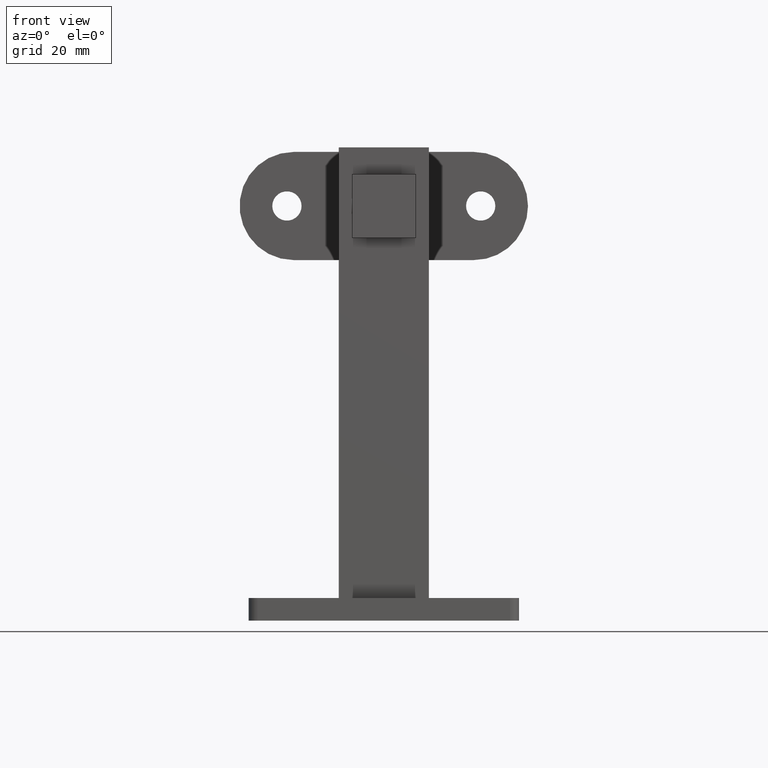
[diagram: clean part render]
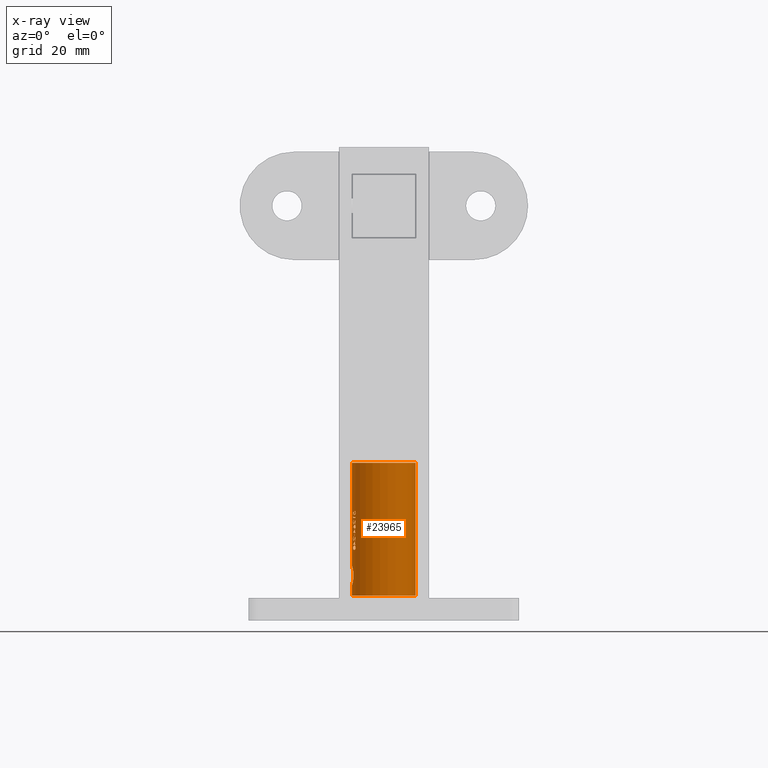
[diagram: x-ray — body ghosted, one internal face saturated and labeled with its STEP entity id]
A machine part, front view, then the same camera in x-ray: the body is ghosted and one INTERNAL B-rep face — a face not visible from any outside direction — is saturated and labeled: STEP entity #23965.
In plain terms, the highlighted cylindrical surface (edge-blend (fillet) strip) has radius 7.05 mm, axis along (-0, -0, -1).
Its self-contained STEP definition (entity closure, byte-faithful):
#18 = VERTEX_POINT ( 'NONE', #27423 ) ;
#32 = CARTESIAN_POINT ( 'NONE',  ( -6.613469593499244681, -2.442236723122088282, -34.19445650439591589 ) ) ;
#49 = VECTOR ( 'NONE', #12304, 1000.000000000000000 ) ;
#60 = ORIENTED_EDGE ( 'NONE', *, *, #13028, .F. ) ;
#88 = EDGE_CURVE ( 'NONE', #26033, #24939, #3929, .T. ) ;
#90 = CARTESIAN_POINT ( 'NONE',  ( -7.049979598726114460, -0.01696047008547180851, -36.56407335069445708 ) ) ;
#92 = CARTESIAN_POINT ( 'NONE',  ( -6.764843180478572471, -1.984791681915768713, -36.80850570832821944 ) ) ;
#133 = EDGE_CURVE ( 'NONE', #12928, #24391, #3253, .T. ) ;
#207 = CARTESIAN_POINT ( 'NONE',  ( -6.613689917064990098, -2.441639957264959193, -34.21743330996261534 ) ) ;
#220 = CARTESIAN_POINT ( 'NONE',  ( -6.668638801497197122, -2.287829881107520613, -37.25412610507052591 ) ) ;
#221 = CARTESIAN_POINT ( 'NONE',  ( -7.049999999999996270, 4.205905213953353369E-12, -32.16121306602091323 ) ) ;
#251 = DIRECTION ( 'NONE',  ( 0.000000000000000000, 0.000000000000000000, -1.000000000000000000 ) ) ;
#257 = AXIS2_PLACEMENT_3D ( 'NONE', #3705, #25100, #12280 ) ;
#272 = ORIENTED_EDGE ( 'NONE', *, *, #27567, .F. ) ;
#298 = FACE_BOUND ( 'NONE', #9066, .T. ) ;
#307 = CARTESIAN_POINT ( 'NONE',  ( -6.484049338263080386, -2.767598991720088275, -31.43830128205128815 ) ) ;
#350 = CARTESIAN_POINT ( 'NONE',  ( -7.049999999999996270, -1.719616391198568817E-15, -37.07765758547009938 ) ) ;
#352 = ORIENTED_EDGE ( 'NONE', *, *, #3520, .F. ) ;
#380 = VERTEX_POINT ( 'NONE', #3144 ) ;
#386 = CARTESIAN_POINT ( 'NONE',  ( -6.803477723021706502, -1.848023504273506257, -38.85135174612714337 ) ) ;
#395 = ORIENTED_EDGE ( 'NONE', *, *, #88, .F. ) ;
#433 = VERTEX_POINT ( 'NONE', #13487 ) ;
#510 = CARTESIAN_POINT ( 'NONE',  ( -6.416922743933211493, -2.920823144206454280, -39.26064427303732174 ) ) ;
#516 = CARTESIAN_POINT ( 'NONE',  ( -6.477088730742901035, -2.784368972902867778, -34.60856456492219024 ) ) ;
#517 = ORIENTED_EDGE ( 'NONE', *, *, #14754, .F. ) ;
#554 = CARTESIAN_POINT ( 'NONE',  ( -6.933399933387001113, -1.282105009053578382, -43.33117464955908105 ) ) ;
#579 = CARTESIAN_POINT ( 'NONE',  ( -6.803477723021706502, -1.848023504273506257, -34.33854166666667851 ) ) ;
#717 = CARTESIAN_POINT ( 'NONE',  ( -6.262011723423484000, -3.238782051282054208, -31.09564678485577360 ) ) ;
#750 = EDGE_CURVE ( 'NONE', #26370, #2750, #21299, .T. ) ;
#766 = CARTESIAN_POINT ( 'NONE',  ( -6.755122236190183038, -2.017628205128208396, -31.89623397435898511 ) ) ;
#788 = VERTEX_POINT ( 'NONE', #8772 ) ;
#819 = CIRCLE ( 'NONE', #21866, 7.049999999999994493 ) ;
#870 = CARTESIAN_POINT ( 'NONE',  ( -6.262325065283623537, -3.238176221568735524, -38.89296954133605055 ) ) ;
#951 = CARTESIAN_POINT ( 'NONE',  ( -6.346861459936216754, -3.069177350427352735, -50.00000000000000000 ) ) ;
#995 = VECTOR ( 'NONE', #23218, 1000.000000000000000 ) ;
#997 = CARTESIAN_POINT ( 'NONE',  ( -6.465841354532512852, -2.810257435090132372, -31.43714789145973043 ) ) ;
#1018 = CARTESIAN_POINT ( 'NONE',  ( -6.794172878873824040, -1.881944444444447306, -50.00000000000000000 ) ) ;
#1062 = VERTEX_POINT ( 'NONE', #18597 ) ;
#1065 = CARTESIAN_POINT ( 'NONE',  ( -6.484049338263080386, -2.767598991720088275, -31.43830128205128815 ) ) ;
#1109 = ORIENTED_EDGE ( 'NONE', *, *, #23715, .F. ) ;
#1134 = EDGE_CURVE ( 'NONE', #18811, #12237, #25340, .T. ) ;
#1137 = CARTESIAN_POINT ( 'NONE',  ( -6.768591808094528872, -1.972531390734089118, -31.92204133103373920 ) ) ;
#1177 = VERTEX_POINT ( 'NONE', #2618 ) ;
#1188 = EDGE_CURVE ( 'NONE', #3033, #9998, #12798, .T. ) ;
#1191 = CARTESIAN_POINT ( 'NONE',  ( -6.262011723423484888, -3.238782051282053320, -34.19649772970085877 ) ) ;
#1231 = CARTESIAN_POINT ( 'NONE',  ( -7.049999999999996270, 0.000000000000000000, -50.00000000000000000 ) ) ;
#1252 = ORIENTED_EDGE ( 'NONE', *, *, #22528, .F. ) ;
#1283 = VECTOR ( 'NONE', #11497, 1000.000000000000000 ) ;
#1293 = CARTESIAN_POINT ( 'NONE',  ( -6.681373470657557156, -2.250206752656635611, -32.88364784850032407 ) ) ;
#1305 = VERTEX_POINT ( 'NONE', #23179 ) ;
#1330 = LINE ( 'NONE', #8277, #18043 ) ;
#1337 = EDGE_CURVE ( 'NONE', #16225, #7961, #25667, .T. ) ;
#1344 = ORIENTED_EDGE ( 'NONE', *, *, #9266, .F. ) ;
#1346 = CARTESIAN_POINT ( 'NONE',  ( -6.441315104883706510, -2.865651709401712210, -30.69204059829060327 ) ) ;
#1421 = CARTESIAN_POINT ( 'NONE',  ( -6.782244201698568453, -1.924896447734149696, -37.10674290572583800 ) ) ;
#1448 = VERTEX_POINT ( 'NONE', #6679 ) ;
#1454 = VECTOR ( 'NONE', #14173, 1000.000000000000000 ) ;
#1473 = B_SPLINE_CURVE_WITH_KNOTS ( 'NONE', 3,
 ( #6219, #8373, #19054, #10664, #19240, #12701, #4135, #14917, #16891, #2068, #23352, #25813 ),
 .UNSPECIFIED., .F., .F.,
 ( 4, 2, 2, 2, 2, 4 ),
 ( 0.000000000000000000, 0.0002455956108509096047, 0.0004911912217018192094, 0.0007367868325527289226, 0.0008595846379781755392, 0.0009823824434036223727 ),
 .UNSPECIFIED. ) ;
#1490 = VERTEX_POINT ( 'NONE', #11136 ) ;
#1491 = CARTESIAN_POINT ( 'NONE',  ( -6.668058080437229584, -2.288995726495728800, -32.76121794871795601 ) ) ;
#1514 = VERTEX_POINT ( 'NONE', #19880 ) ;
#1522 = CARTESIAN_POINT ( 'NONE',  ( -6.650112420979082728, -2.340620926428182091, -31.11423431515350657 ) ) ;
#1547 = CARTESIAN_POINT ( 'NONE',  ( -7.049999999999996270, 0.000000000000000000, -50.00000000000000000 ) ) ;
#1593 = EDGE_CURVE ( 'NONE', #22610, #17572, #6668, .T. ) ;
#1600 = AXIS2_PLACEMENT_3D ( 'NONE', #13994, #26680, #20255 ) ;
#1622 = CARTESIAN_POINT ( 'NONE',  ( -6.310119904082023723, -3.144419948757605443, -31.39446377201150895 ) ) ;
#1646 = DIRECTION ( 'NONE',  ( -0.000000000000000000, -0.000000000000000000, -1.000000000000000000 ) ) ;
#1661 = CARTESIAN_POINT ( 'NONE',  ( -6.803477723021706502, -1.848023504273506257, -34.33854166666667851 ) ) ;
#1669 = B_SPLINE_CURVE_WITH_KNOTS ( 'NONE', 3,
 ( #20037, #24454, #9522, #7315, #11644, #17710, #26636, #554, #11553, #26557, #4868, #19771, #21914, #5328, #21058, #10887, #17306, #19521, #9190, #10179, #10273, #23709, #19866, #12357, #17742, #20349, #22966, #23158, #16837, #14583 ),
 .UNSPECIFIED., .F., .F.,
 ( 4, 2, 2, 2, 2, 2, 2, 2, 2, 2, 2, 2, 2, 2, 4 ),
 ( 5.881304727421117674E-19, 0.0004127026072295193596, 0.0008254052144590380688, 0.001238107821688557049, 0.001650810428918075704, 0.002476215643377098052, 0.002888918250606600010, 0.003301620857836101534, 0.003714323465065603926, 0.004127026072295106318, 0.004952431286754110235, 0.005365133893983605254, 0.005777836501213099406, 0.006190539108442594425, 0.006603241715672088577 ),
 .UNSPECIFIED. ) ;
#1677 = CARTESIAN_POINT ( 'NONE',  ( -7.049999999999996270, -2.382198065528919689E-15, -30.71748130341881122 ) ) ;
#1709 = EDGE_CURVE ( 'NONE', #12237, #5477, #2557, .T. ) ;
#1726 = VERTEX_POINT ( 'NONE', #23437 ) ;
#1783 = ORIENTED_EDGE ( 'NONE', *, *, #6475, .F. ) ;
#1810 = CARTESIAN_POINT ( 'NONE',  ( -6.430216814313942209, -2.891117148947207394, -31.54749225807546154 ) ) ;
#1851 = EDGE_LOOP ( 'NONE', ( #15177, #395, #25088, #272, #7949, #9256, #20809, #4677, #9568, #13847, #13946, #13332 ) ) ;
#1861 = CARTESIAN_POINT ( 'NONE',  ( -6.729062697202905063, -2.103129071498563096, -36.60125577318841295 ) ) ;
#1868 = CARTESIAN_POINT ( 'NONE',  ( -6.778261432687530785, -1.938959672673343348, -32.92009117291257780 ) ) ;
#1883 = EDGE_CURVE ( 'NONE', #12343, #24738, #21603, .T. ) ;
#1923 = EDGE_CURVE ( 'NONE', #6453, #24195, #3913, .T. ) ;
#1940 = CARTESIAN_POINT ( 'NONE',  ( -6.783561931209746376, -1.919840494791668739, -34.42996920072116751 ) ) ;
#1959 = CARTESIAN_POINT ( 'NONE',  ( -6.268863039650283575, -3.225506563183821118, -34.30800023693588940 ) ) ;
#2068 = CARTESIAN_POINT ( 'NONE',  ( -6.265316302669734938, -3.232414073476679750, -38.76905625860899107 ) ) ;
#2097 = CARTESIAN_POINT ( 'NONE',  ( -6.505863866635063886, -2.715922559428420868, -36.98808510283120654 ) ) ;
#2117 = CARTESIAN_POINT ( 'NONE',  ( -6.262011723423484000, -3.238782051282054208, -31.09564678485577360 ) ) ;
#2136 = LINE ( 'NONE', #18202, #12474 ) ;
#2143 = CARTESIAN_POINT ( 'NONE',  ( -6.718131935719802605, -2.137922607024185684, -36.58092364691819398 ) ) ;
#2144 = CARTESIAN_POINT ( 'NONE',  ( -6.749542499304140186, -2.036383599765879904, -37.02530716008836720 ) ) ;
#2170 = CARTESIAN_POINT ( 'NONE',  ( -6.611658501892530460, -2.447136511244999202, -34.12572939706437580 ) ) ;
#2180 = CARTESIAN_POINT ( 'NONE',  ( -6.534473993714073892, -2.647388354969240964, -37.05202393060244503 ) ) ;
#2200 = CARTESIAN_POINT ( 'NONE',  ( -6.398508913996692193, -2.960396679110572915, -30.71038385479124244 ) ) ;
#2213 = CARTESIAN_POINT ( 'NONE',  ( 0.000000000000000000, 0.000000000000000000, -32.09975961538462030 ) ) ;
#2245 = VERTEX_POINT ( 'NONE', #15589 ) ;
#2253 = EDGE_CURVE ( 'NONE', #21201, #15694, #5236, .T. ) ;
#2270 = DIRECTION ( 'NONE',  ( 1.000000000000000000, 0.000000000000000000, 0.000000000000000000 ) ) ;
#2289 = EDGE_CURVE ( 'NONE', #10288, #11596, #12229, .T. ) ;
#2298 = VECTOR ( 'NONE', #3038, 1000.000000000000000 ) ;
#2387 = EDGE_CURVE ( 'NONE', #6779, #15332, #4507, .T. ) ;
#2392 = VERTEX_POINT ( 'NONE', #14160 ) ;
#2412 = CARTESIAN_POINT ( 'NONE',  ( -6.262011723423484000, -3.238782051282054208, -31.09564678485577360 ) ) ;
#2416 = CARTESIAN_POINT ( 'NONE',  ( -7.049999999999996270, 0.000000000000000000, -50.00000000000000000 ) ) ;
#2465 = VERTEX_POINT ( 'NONE', #1677 ) ;
#2469 = CARTESIAN_POINT ( 'NONE',  ( -6.455485372691335932, -2.833585820646369324, -34.60990918803420158 ) ) ;
#2512 = CARTESIAN_POINT ( 'NONE',  ( -6.279439884136768235, -3.204861111111113381, -50.00000000000000000 ) ) ;
#2528 = CARTESIAN_POINT ( 'NONE',  ( -6.279439884136768235, -3.204861111111113381, -36.37379807692308731 ) ) ;
#2543 = VECTOR ( 'NONE', #19450, 1000.000000000000000 ) ;
#2557 = CIRCLE ( 'NONE', #26765, 7.049999999999996270 ) ;
#2591 = VECTOR ( 'NONE', #27704, 1000.000000000000000 ) ;
#2610 = VERTEX_POINT ( 'NONE', #14998 ) ;
#2611 = DIRECTION ( 'NONE',  ( -0.000000000000000000, -0.000000000000000000, -1.000000000000000000 ) ) ;
#2613 = EDGE_CURVE ( 'NONE', #14206, #3562, #21571, .T. ) ;
#2618 = CARTESIAN_POINT ( 'NONE',  ( -7.049979598726114460, -0.01696047008547236015, -32.01787234575321150 ) ) ;
#2627 = FACE_BOUND ( 'NONE', #1851, .T. ) ;
#2659 = CARTESIAN_POINT ( 'NONE',  ( -6.582823835980762261, -2.523994467041688061, -34.46611487921040151 ) ) ;
#2668 = CARTESIAN_POINT ( 'NONE',  ( -7.049999999999996270, 4.205905213953353369E-12, -32.16121306602091323 ) ) ;
#2694 = CARTESIAN_POINT ( 'NONE',  ( -6.613689917064990098, -2.441639957264959193, -34.21743330996261534 ) ) ;
#2715 = VERTEX_POINT ( 'NONE', #21829 ) ;
#2723 = VERTEX_POINT ( 'NONE', #4776 ) ;
#2738 = CARTESIAN_POINT ( 'NONE',  ( -6.755122236190183926, -2.017628205128208396, -31.05616069043804117 ) ) ;
#2750 = VERTEX_POINT ( 'NONE', #2694 ) ;
#2785 = LINE ( 'NONE', #14678, #16139 ) ;
#2797 = EDGE_CURVE ( 'NONE', #10343, #24258, #11131, .T. ) ;
#2827 = LINE ( 'NONE', #2512, #16829 ) ;
#2833 = AXIS2_PLACEMENT_3D ( 'NONE', #7037, #24080, #9346 ) ;
#2852 = CARTESIAN_POINT ( 'NONE',  ( -6.680678877800653837, -2.251894698183762422, -37.13701923076924771 ) ) ;
#2870 = CARTESIAN_POINT ( 'NONE',  ( -6.364952310323142015, -3.031936748946652660, -33.84163326929785853 ) ) ;
#2911 = CARTESIAN_POINT ( 'NONE',  ( -6.641273807294083120, -2.365582849225430273, -30.98487371461004614 ) ) ;
#2930 = CARTESIAN_POINT ( 'NONE',  ( -6.801317071758782085, -1.856066259602419555, -33.30005941145061854 ) ) ;
#2969 = FACE_BOUND ( 'NONE', #13618, .T. ) ;
#3019 = ORIENTED_EDGE ( 'NONE', *, *, #27331, .F. ) ;
#3033 = VERTEX_POINT ( 'NONE', #10617 ) ;
#3038 = DIRECTION ( 'NONE',  ( -0.000000000000000000, -0.000000000000000000, -1.000000000000000000 ) ) ;
#3049 = CARTESIAN_POINT ( 'NONE',  ( -7.049999999999996270, -2.382198065528919689E-15, -50.00000000000000000 ) ) ;
#3064 = CARTESIAN_POINT ( 'NONE',  ( -6.331308424961908266, -3.101135019411916716, -31.03080817096608612 ) ) ;
#3076 = CARTESIAN_POINT ( 'NONE',  ( -6.575021364787049905, -2.543932792467950676, -38.40905448717949611 ) ) ;
#3120 = CARTESIAN_POINT ( 'NONE',  ( -6.684242619242160899, -2.241294404380343774, -37.25574252136753728 ) ) ;
#3137 = CARTESIAN_POINT ( 'NONE',  ( -6.765161157500662270, -1.983707264957267347, -33.18655473758013130 ) ) ;
#3144 = CARTESIAN_POINT ( 'NONE',  ( -7.049999999999996270, -1.929399303760842973E-15, -35.16112446581197304 ) ) ;
#3169 = ORIENTED_EDGE ( 'NONE', *, *, #5210, .F. ) ;
#3253 = CIRCLE ( 'NONE', #17372, 7.049999999999996270 ) ;
#3305 = CYLINDRICAL_SURFACE ( 'NONE', #3512, 7.049999999999996270 ) ;
#3323 = CARTESIAN_POINT ( 'NONE',  ( -6.704292326125182555, -2.180853375942331418, -33.46681401139161949 ) ) ;
#3329 = LINE ( 'NONE', #12966, #21692 ) ;
#3330 = DIRECTION ( 'NONE',  ( -0.000000000000000000, -0.000000000000000000, -1.000000000000000000 ) ) ;
#3343 = CARTESIAN_POINT ( 'NONE',  ( -6.385526129173225485, -2.988077673577319793, -30.85852594005750404 ) ) ;
#3352 = CIRCLE ( 'NONE', #5744, 7.049999999999996270 ) ;
#3355 = ORIENTED_EDGE ( 'NONE', *, *, #27062, .F. ) ;
#3427 = CARTESIAN_POINT ( 'NONE',  ( -7.049999999999996270, 0.000000000000000000, -50.00000000000000000 ) ) ;
#3447 = ORIENTED_EDGE ( 'NONE', *, *, #16465, .F. ) ;
#3454 = CARTESIAN_POINT ( 'NONE',  ( -6.718131935719807046, -2.137922607024167476, -32.91746210845663256 ) ) ;
#3459 = B_SPLINE_CURVE_WITH_KNOTS ( 'NONE', 3,
 ( #18036, #5379, #7463, #24510, #11690, #5561, #7367, #13815, #26780, #1065 ),
 .UNSPECIFIED., .F., .F.,
 ( 4, 2, 2, 2, 4 ),
 ( 0.000000000000000000, 0.0001249747854373195943, 0.0002499495708746488922, 0.0003749243563119781901, 0.0004998991417493074338 ),
 .UNSPECIFIED. ) ;
#3472 = VERTEX_POINT ( 'NONE', #3912 ) ;
#3508 = CARTESIAN_POINT ( 'NONE',  ( -7.049999999999996270, 0.000000000000000000, -50.00000000000000000 ) ) ;
#3512 = AXIS2_PLACEMENT_3D ( 'NONE', #12891, #17270, #23460 ) ;
#3513 = B_SPLINE_CURVE_WITH_KNOTS ( 'NONE', 3,
 ( #22174, #997, #26808, #11994, #24626, #13939, #24825, #7760, #22360, #24727 ),
 .UNSPECIFIED., .F., .F.,
 ( 4, 2, 2, 2, 4 ),
 ( 0.000000000000000000, 0.0001375138297931348895, 0.0002750276595862697791, 0.0004125414893794046686, 0.0005500553191725395582 ),
 .UNSPECIFIED. ) ;
#3520 = EDGE_CURVE ( 'NONE', #15231, #17133, #14507, .T. ) ;
#3562 = VERTEX_POINT ( 'NONE', #21730 ) ;
#3653 = VECTOR ( 'NONE', #24336, 1000.000000000000000 ) ;
#3665 = CARTESIAN_POINT ( 'NONE',  ( -6.800717055123103094, -1.858309307570393365, -33.07472159625405794 ) ) ;
#3690 = CARTESIAN_POINT ( 'NONE',  ( -6.648629415403477516, -2.344831114839973640, -31.07475783269647707 ) ) ;
#3698 = EDGE_CURVE ( 'NONE', #16240, #18266, #23892, .T. ) ;
#3700 = B_SPLINE_CURVE_WITH_KNOTS ( 'NONE', 3,
 ( #4410, #9261, #13242, #7140 ),
 .UNSPECIFIED., .F., .F.,
 ( 4, 4 ),
 ( 0.000000000000000000, 0.0003020135341980021955 ),
 .UNSPECIFIED. ) ;
#3705 = CARTESIAN_POINT ( 'NONE',  ( 0.000000000000000000, 0.000000000000000000, -32.21848290598290987 ) ) ;
#3732 = ORIENTED_EDGE ( 'NONE', *, *, #24182, .F. ) ;
#3791 = ORIENTED_EDGE ( 'NONE', *, *, #15099, .F. ) ;
#3873 = CARTESIAN_POINT ( 'NONE',  ( -6.646173306720523755, -2.351787519903031587, -31.03576713746917548 ) ) ;
#3903 = EDGE_CURVE ( 'NONE', #13731, #8671, #11847, .T. ) ;
#3912 = CARTESIAN_POINT ( 'NONE',  ( -6.485631673929415975, -2.763888888888890616, -35.76322115384616041 ) ) ;
#3913 = CIRCLE ( 'NONE', #25851, 7.049999999999996270 ) ;
#3929 = LINE ( 'NONE', #6284, #26002 ) ;
#3971 = CARTESIAN_POINT ( 'NONE',  ( -6.765161157500663158, -1.983707264957266903, -36.85001627604167140 ) ) ;
#3991 = ORIENTED_EDGE ( 'NONE', *, *, #6954, .F. ) ;
#3993 = CARTESIAN_POINT ( 'NONE',  ( -6.346861459936216754, -3.069177350427352735, -36.65709092881945708 ) ) ;
#3999 = CARTESIAN_POINT ( 'NONE',  ( -7.049999999999996270, -1.428828195567693216E-15, -50.00000000000000000 ) ) ;
#4057 = EDGE_CURVE ( 'NONE', #17572, #21403, #22206, .T. ) ;
#4058 = VERTEX_POINT ( 'NONE', #5187 ) ;
#4063 = DIRECTION ( 'NONE',  ( -0.000000000000000000, -0.000000000000000000, -1.000000000000000000 ) ) ;
#4073 = EDGE_CURVE ( 'NONE', #25527, #16528, #3459, .T. ) ;
#4135 = CARTESIAN_POINT ( 'NONE',  ( -6.322277877289301351, -3.119928227337740445, -38.56010744001733315 ) ) ;
#4184 = CARTESIAN_POINT ( 'NONE',  ( -7.049999999999996270, -1.719616391198568817E-15, -50.00000000000000000 ) ) ;
#4255 = CARTESIAN_POINT ( 'NONE',  ( -7.049999999999996270, -2.083101635737162480E-15, -50.00000000000000000 ) ) ;
#4308 = CARTESIAN_POINT ( 'NONE',  ( -6.754180034107555741, -2.020841275736593445, -36.69094081758385073 ) ) ;
#4310 = CARTESIAN_POINT ( 'NONE',  ( -6.680678877800653837, -2.251894698183762422, -37.13701923076924771 ) ) ;
#4319 = CARTESIAN_POINT ( 'NONE',  ( -6.794172878873824040, -1.881944444444447306, -31.50614316239316892 ) ) ;
#4357 = CARTESIAN_POINT ( 'NONE',  ( -6.606070902803590883, -2.462524578880264325, -33.53222069752978740 ) ) ;
#4368 = ORIENTED_EDGE ( 'NONE', *, *, #2797, .F. ) ;
#4392 = B_SPLINE_CURVE_WITH_KNOTS ( 'NONE', 3,
 ( #10221, #14300, #1522, #9959, #14482, #3690, #6055, #3873, #20662, #27091 ),
 .UNSPECIFIED., .F., .F.,
 ( 4, 3, 3, 4 ),
 ( 0.000000000000000000, 3.968614429812882417E-05, 7.942588516740315351E-05, 0.0001588523668120195504 ),
 .UNSPECIFIED. ) ;
#4410 = CARTESIAN_POINT ( 'NONE',  ( -6.575226407508125703, -2.543402777777780788, -30.82772435897436480 ) ) ;
#4426 = VERTEX_POINT ( 'NONE', #25545 ) ;
#4457 = CIRCLE ( 'NONE', #2833, 7.049999999999996270 ) ;
#4507 = B_SPLINE_CURVE_WITH_KNOTS ( 'NONE', 3,
 ( #16601, #16503, #5919, #14535, #22870, #16695, #12509, #12329, #27337, #10097 ),
 .UNSPECIFIED., .F., .F.,
 ( 4, 2, 2, 2, 4 ),
 ( 0.000000000000000000, 0.0001733703435708647397, 0.0003467406871417294794, 0.0005201110307125942191, 0.0006934813742834589588 ),
 .UNSPECIFIED. ) ;
#4520 = ORIENTED_EDGE ( 'NONE', *, *, #10396, .F. ) ;
#4545 = ORIENTED_EDGE ( 'NONE', *, *, #1188, .F. ) ;
#4575 = CARTESIAN_POINT ( 'NONE',  ( -6.279439884136768235, -3.204861111111113381, -50.00000000000000000 ) ) ;
#4630 = ORIENTED_EDGE ( 'NONE', *, *, #14784, .F. ) ;
#4677 = ORIENTED_EDGE ( 'NONE', *, *, #27394, .F. ) ;
#4682 = ORIENTED_EDGE ( 'NONE', *, *, #11158, .F. ) ;
#4703 = LINE ( 'NONE', #1231, #9059 ) ;
#4705 = ORIENTED_EDGE ( 'NONE', *, *, #24890, .T. ) ;
#4732 = VERTEX_POINT ( 'NONE', #14063 ) ;
#4736 = EDGE_CURVE ( 'NONE', #16665, #1490, #13613, .T. ) ;
#4776 = CARTESIAN_POINT ( 'NONE',  ( -6.684242619242160899, -2.241294404380343774, -37.25574252136753728 ) ) ;
#4778 = CARTESIAN_POINT ( 'NONE',  ( 0.000000000000000000, 0.000000000000000000, -36.27203525641026971 ) ) ;
#4834 = CARTESIAN_POINT ( 'NONE',  ( -6.613689917064990098, -2.441639957264959193, -34.21743330996261534 ) ) ;
#4842 = CARTESIAN_POINT ( 'NONE',  ( -7.049999999999996270, 0.000000000000000000, -50.00000000000000000 ) ) ;
#4868 = CARTESIAN_POINT ( 'NONE',  ( -6.808141533826085556, -1.834019295686855067, -43.94119232784986195 ) ) ;
#4924 = CARTESIAN_POINT ( 'NONE',  ( -6.684242619242160899, -2.241294404380344218, -33.59228098290599007 ) ) ;
#4932 = CARTESIAN_POINT ( 'NONE',  ( -6.454306577612586082, -2.843370952134192109, -33.04908046284649714 ) ) ;
#4963 = CARTESIAN_POINT ( 'NONE',  ( -6.683426286531625848, -2.245120219948190332, -38.43161719045350821 ) ) ;
#4965 = DIRECTION ( 'NONE',  ( 0.000000000000000000, 0.000000000000000000, 1.000000000000000000 ) ) ;
#4993 = CARTESIAN_POINT ( 'NONE',  ( -6.541791635635928692, -2.628205128205130414, -36.27203525641026971 ) ) ;
#5013 = DIRECTION ( 'NONE',  ( 0.000000000000000000, 0.000000000000000000, 1.000000000000000000 ) ) ;
#5024 = CARTESIAN_POINT ( 'NONE',  ( -6.755122236190183038, -2.017628205128208396, -31.50614316239316892 ) ) ;
#5033 = CARTESIAN_POINT ( 'NONE',  ( -6.653145902836032022, -2.332330113164331475, -33.46569821057814664 ) ) ;
#5056 = CARTESIAN_POINT ( 'NONE',  ( -6.795198986898691729, -1.878279000514809338, -38.69464411449849450 ) ) ;
#5079 = DIRECTION ( 'NONE',  ( 0.000000000000000000, 0.000000000000000000, 1.000000000000000000 ) ) ;
#5081 = CARTESIAN_POINT ( 'NONE',  ( -7.049999999999996270, 0.000000000000000000, -50.00000000000000000 ) ) ;
#5095 = CARTESIAN_POINT ( 'NONE',  ( -6.278151677920424945, -3.207415906512542492, -39.01216704037508975 ) ) ;
#5106 = VECTOR ( 'NONE', #17539, 1000.000000000000000 ) ;
#5112 = CARTESIAN_POINT ( 'NONE',  ( -6.370734198889633326, -3.025983730351445633, -32.87795832411048025 ) ) ;
#5115 = CARTESIAN_POINT ( 'NONE',  ( -7.049999999999996270, -1.929399303760842973E-15, -35.82258279914530874 ) ) ;
#5124 = CARTESIAN_POINT ( 'NONE',  ( -6.674267799061778028, -2.278556318799640490, -34.19539003767381047 ) ) ;
#5178 = EDGE_CURVE ( 'NONE', #5334, #3033, #14133, .T. ) ;
#5180 = CARTESIAN_POINT ( 'NONE',  ( -7.049982561528608471, -0.01572891830539275074, -33.55063236771638202 ) ) ;
#5187 = CARTESIAN_POINT ( 'NONE',  ( -7.049999999999996270, -2.083101635737162480E-15, -34.10957532051282470 ) ) ;
#5189 = VERTEX_POINT ( 'NONE', #11787 ) ;
#5210 = EDGE_CURVE ( 'NONE', #1726, #25284, #24886, .T. ) ;
#5223 = ORIENTED_EDGE ( 'NONE', *, *, #5556, .F. ) ;
#5236 = LINE ( 'NONE', #951, #14211 ) ;
#5325 = ORIENTED_EDGE ( 'NONE', *, *, #4057, .F. ) ;
#5328 = CARTESIAN_POINT ( 'NONE',  ( -6.734249069405029431, -2.086430721482279260, -44.72438161020487968 ) ) ;
#5331 = LINE ( 'NONE', #15900, #25727 ) ;
#5334 = VERTEX_POINT ( 'NONE', #24593 ) ;
#5360 = ORIENTED_EDGE ( 'NONE', *, *, #27399, .F. ) ;
#5377 = CARTESIAN_POINT ( 'NONE',  ( 0.000000000000000000, 0.000000000000000000, -38.01896367521367637 ) ) ;
#5379 = CARTESIAN_POINT ( 'NONE',  ( -6.600715724631751158, -2.476500137056640849, -31.16128146917829511 ) ) ;
#5475 = CARTESIAN_POINT ( 'NONE',  ( -6.545250317378507710, -2.620878721756271901, -39.30702268426531987 ) ) ;
#5477 = VERTEX_POINT ( 'NONE', #4319 ) ;
#5484 = EDGE_CURVE ( 'NONE', #9822, #2610, #1473, .T. ) ;
#5556 = EDGE_CURVE ( 'NONE', #3562, #2392, #9340, .T. ) ;
#5558 = CARTESIAN_POINT ( 'NONE',  ( -6.514221683396887563, -2.697039618172575537, -39.30398207368008912 ) ) ;
#5561 = CARTESIAN_POINT ( 'NONE',  ( -6.560069516484454688, -2.582414548878258831, -31.37938140520989805 ) ) ;
#5573 = ORIENTED_EDGE ( 'NONE', *, *, #18031, .F. ) ;
#5625 = CARTESIAN_POINT ( 'NONE',  ( -6.747068744960177611, -2.044627111492837379, -32.99362563275190041 ) ) ;
#5735 = VERTEX_POINT ( 'NONE', #13784 ) ;
#5736 = VECTOR ( 'NONE', #25871, 1000.000000000000000 ) ;
#5744 = AXIS2_PLACEMENT_3D ( 'NONE', #5377, #9661, #16163 ) ;
#5753 = VERTEX_POINT ( 'NONE', #11750 ) ;
#5755 = CARTESIAN_POINT ( 'NONE',  ( -6.790732439691839595, -1.894425718561924210, -37.06231431657788988 ) ) ;
#5883 = EDGE_CURVE ( 'NONE', #5189, #16225, #18663, .T. ) ;
#5919 = CARTESIAN_POINT ( 'NONE',  ( -6.526865466770282787, -2.665637670747688759, -31.55034929632593332 ) ) ;
#5929 = CARTESIAN_POINT ( 'NONE',  ( -6.346861459936216754, -3.069177350427352735, -37.27270299145300214 ) ) ;
#5930 = VERTEX_POINT ( 'NONE', #1940 ) ;
#5946 = CARTESIAN_POINT ( 'NONE',  ( -6.705654282941798883, -2.208159397477227781, -35.22041681765949761 ) ) ;
#5964 = CARTESIAN_POINT ( 'NONE',  ( -6.267713462285346537, -3.227841184171407640, -31.22485538366988678 ) ) ;
#5977 = VERTEX_POINT ( 'NONE', #21350 ) ;
#5989 = EDGE_CURVE ( 'NONE', #433, #1177, #20606, .T. ) ;
#6008 = B_SPLINE_CURVE_WITH_KNOTS ( 'NONE', 3,
 ( #15880, #19989, #5180, #11333 ),
 .UNSPECIFIED., .F., .F.,
 ( 4, 4 ),
 ( 0.0006534428958308399109, 0.0007875999287721091808 ),
 .UNSPECIFIED. ) ;
#6034 = CARTESIAN_POINT ( 'NONE',  ( -6.760231391610212803, -2.000833395828163663, -37.17936941850626198 ) ) ;
#6055 = CARTESIAN_POINT ( 'NONE',  ( -6.647809807646000380, -2.347152479359958299, -31.06174656959581526 ) ) ;
#6059 = CARTESIAN_POINT ( 'NONE',  ( -6.650374048495659274, -2.339877136752140263, -31.14069803352030874 ) ) ;
#6098 = ORIENTED_EDGE ( 'NONE', *, *, #750, .F. ) ;
#6151 = VERTEX_POINT ( 'NONE', #6632 ) ;
#6178 = ORIENTED_EDGE ( 'NONE', *, *, #10084, .F. ) ;
#6211 = CARTESIAN_POINT ( 'NONE',  ( -6.426116902908799666, -2.899572649572651706, -34.74559294871794890 ) ) ;
#6218 = CARTESIAN_POINT ( 'NONE',  ( -6.803124352440200084, -1.849324434090517499, -33.13370172605887376 ) ) ;
#6219 = CARTESIAN_POINT ( 'NONE',  ( -6.575021364787049905, -2.543932792467950676, -38.40905448717949611 ) ) ;
#6235 = DIRECTION ( 'NONE',  ( -0.000000000000000000, -0.000000000000000000, -1.000000000000000000 ) ) ;
#6259 = ORIENTED_EDGE ( 'NONE', *, *, #5883, .F. ) ;
#6263 = VERTEX_POINT ( 'NONE', #350 ) ;
#6273 = DIRECTION ( 'NONE',  ( -0.000000000000000000, -0.000000000000000000, -1.000000000000000000 ) ) ;
#6274 = CARTESIAN_POINT ( 'NONE',  ( -6.279439884136767347, -3.204861111111113825, -33.60924145299145493 ) ) ;
#6284 = CARTESIAN_POINT ( 'NONE',  ( -6.668058080437229584, -2.288995726495728356, -50.00000000000000000 ) ) ;
#6285 = CARTESIAN_POINT ( 'NONE',  ( -6.803477723021705614, -1.848023504273506923, -33.19264990651710434 ) ) ;
#6300 = CARTESIAN_POINT ( 'NONE',  ( -6.304838078946705338, -3.154880648608221705, -34.45883302918139179 ) ) ;
#6384 = VERTEX_POINT ( 'NONE', #13569 ) ;
#6409 = ORIENTED_EDGE ( 'NONE', *, *, #24435, .F. ) ;
#6428 = CARTESIAN_POINT ( 'NONE',  ( -7.049999999999996270, -1.129034241427662473E-15, -42.90000000000000568 ) ) ;
#6450 = CARTESIAN_POINT ( 'NONE',  ( -6.336909999838499452, -3.089924587050845162, -30.77894511185437310 ) ) ;
#6453 = VERTEX_POINT ( 'NONE', #26257 ) ;
#6475 = EDGE_CURVE ( 'NONE', #8548, #22056, #17573, .T. ) ;
#6483 = AXIS2_PLACEMENT_3D ( 'NONE', #14594, #25108, #23213 ) ;
#6504 = VERTEX_POINT ( 'NONE', #9861 ) ;
#6522 = VERTEX_POINT ( 'NONE', #26900 ) ;
#6550 = B_SPLINE_CURVE_WITH_KNOTS ( 'NONE', 3,
 ( #24355, #9335, #5033, #11366, #19669, #9159, #7115, #13404 ),
 .UNSPECIFIED., .F., .F.,
 ( 4, 2, 2, 4 ),
 ( 0.000000000000000000, 0.0001273667653058614755, 0.0002547335306117229511, 0.0005094670612234325664 ),
 .UNSPECIFIED. ) ;
#6575 = EDGE_CURVE ( 'NONE', #19217, #6384, #11664, .T. ) ;
#6632 = CARTESIAN_POINT ( 'NONE',  ( -6.485631673929415975, -2.763888888888890616, -35.64449786324786373 ) ) ;
#6651 = VERTEX_POINT ( 'NONE', #19178 ) ;
#6668 =( BOUNDED_CURVE ( )  B_SPLINE_CURVE ( 3, ( #579, #7342, #9278, #12129 ),
 .UNSPECIFIED., .F., .F. ) 
 B_SPLINE_CURVE_WITH_KNOTS ( ( 4, 4 ),
 ( 1.836026079154164714, 1.925977586676959064 ),
 .UNSPECIFIED. ) 
 CURVE ( )  GEOMETRIC_REPRESENTATION_ITEM ( )  RATIONAL_B_SPLINE_CURVE ( ( 1.000000000000000000, 0.9993258408444896101, 0.9993258408444896101, 1.000000000000000000 ) ) 
 REPRESENTATION_ITEM ( '' )  );
#6679 = CARTESIAN_POINT ( 'NONE',  ( -6.803477723021706502, -1.848023504273506257, -38.85135174612714337 ) ) ;
#6690 = CARTESIAN_POINT ( 'NONE',  ( -7.049999999999996270, -1.648961390067309185E-15, -36.42960889638129629 ) ) ;
#6706 = CARTESIAN_POINT ( 'NONE',  ( -6.668638801497195345, -2.287829881107517949, -33.59066456660896449 ) ) ;
#6779 = VERTEX_POINT ( 'NONE', #21314 ) ;
#6791 = CARTESIAN_POINT ( 'NONE',  ( -6.778261432687537891, -1.938959672673324253, -36.58355271137413212 ) ) ;
#6825 = ORIENTED_EDGE ( 'NONE', *, *, #16060, .F. ) ;
#6843 = EDGE_CURVE ( 'NONE', #7794, #26033, #18106, .T. ) ;
#6888 = CARTESIAN_POINT ( 'NONE',  ( -6.652766509559415731, -2.333536933869528429, -37.24838304344336848 ) ) ;
#6945 = VECTOR ( 'NONE', #14198, 1000.000000000000000 ) ;
#6954 = EDGE_CURVE ( 'NONE', #380, #6522, #16235, .T. ) ;
#6968 = ORIENTED_EDGE ( 'NONE', *, *, #2387, .F. ) ;
#6970 = CARTESIAN_POINT ( 'NONE',  ( -6.668058080437229584, -2.288995726495728800, -32.87994123931624557 ) ) ;
#6975 = CARTESIAN_POINT ( 'NONE',  ( -6.738873036333961508, -2.071984314365008739, -36.47476386807583992 ) ) ;
#7010 = CARTESIAN_POINT ( 'NONE',  ( -7.049999999999996270, -1.565914059222248324E-15, -50.00000000000000000 ) ) ;
#7037 = CARTESIAN_POINT ( 'NONE',  ( 0.000000000000000000, 0.000000000000000000, -33.60924145299145493 ) ) ;
#7042 = DIRECTION ( 'NONE',  ( -1.000000000000000000, 0.000000000000000000, 0.000000000000000000 ) ) ;
#7101 = DIRECTION ( 'NONE',  ( -0.000000000000000000, -0.000000000000000000, -1.000000000000000000 ) ) ;
#7115 = CARTESIAN_POINT ( 'NONE',  ( -6.554056296215273747, -2.598252822675400253, -33.28000898709192512 ) ) ;
#7128 = CARTESIAN_POINT ( 'NONE',  ( -6.454437940633888537, -2.835970886752138931, -33.79580662393163237 ) ) ;
#7140 = CARTESIAN_POINT ( 'NONE',  ( -6.601067962313848625, -2.475560897435900465, -31.11923243856837829 ) ) ;
#7166 = DIRECTION ( 'NONE',  ( -0.000000000000000000, -0.000000000000000000, -1.000000000000000000 ) ) ;
#7178 = EDGE_CURVE ( 'NONE', #2392, #5189, #9569, .T. ) ;
#7182 = CARTESIAN_POINT ( 'NONE',  ( -6.668058080437229584, -2.288995726495728356, -36.42467948717949611 ) ) ;
#7207 = CARTESIAN_POINT ( 'NONE',  ( -6.346861459936216754, -3.069177350427353179, -32.99362939035790987 ) ) ;
#7229 = ORIENTED_EDGE ( 'NONE', *, *, #8264, .T. ) ;
#7262 = ORIENTED_EDGE ( 'NONE', *, *, #3903, .F. ) ;
#7291 = DIRECTION ( 'NONE',  ( -0.000000000000000000, -0.000000000000000000, -1.000000000000000000 ) ) ;
#7315 = CARTESIAN_POINT ( 'NONE',  ( -7.030102508545772899, -0.5462422410099020409, -42.96763579123724952 ) ) ;
#7323 = CARTESIAN_POINT ( 'NONE',  ( -6.770821927238382720, -1.964870941767765000, -38.56186747064400322 ) ) ;
#7342 = CARTESIAN_POINT ( 'NONE',  ( -6.748048200439058952, -2.052086667548593368, -34.20506751685110203 ) ) ;
#7367 = CARTESIAN_POINT ( 'NONE',  ( -6.546774330826923283, -2.616066049505083591, -31.40304969095769749 ) ) ;
#7372 = EDGE_CURVE ( 'NONE', #1305, #15231, #10586, .T. ) ;
#7378 = DIRECTION ( 'NONE',  ( -0.000000000000000000, -0.000000000000000000, -1.000000000000000000 ) ) ;
#7394 = VECTOR ( 'NONE', #7378, 1000.000000000000000 ) ;
#7395 = DIRECTION ( 'NONE',  ( -0.000000000000000000, -0.000000000000000000, -1.000000000000000000 ) ) ;
#7411 = DIRECTION ( 'NONE',  ( 1.000000000000000000, 0.000000000000000000, 0.000000000000000000 ) ) ;
#7435 = ORIENTED_EDGE ( 'NONE', *, *, #19110, .F. ) ;
#7463 = CARTESIAN_POINT ( 'NONE',  ( -6.599223865115615872, -2.480510359013507138, -31.20279400399438785 ) ) ;
#7474 = CARTESIAN_POINT ( 'NONE',  ( -6.803477723021705614, -1.848023504273506479, -36.85611144497865155 ) ) ;
#7507 = DIRECTION ( 'NONE',  ( 0.000000000000000000, 0.000000000000000000, 1.000000000000000000 ) ) ;
#7542 =( BOUNDED_CURVE ( )  B_SPLINE_CURVE ( 3, ( #26057, #8786, #25865, #10806 ),
 .UNSPECIFIED., .F., .F. ) 
 B_SPLINE_CURVE_WITH_KNOTS ( ( 4, 4 ),
 ( 1.836026079154164714, 1.994661780139137086 ),
 .UNSPECIFIED. ) 
 CURVE ( )  GEOMETRIC_REPRESENTATION_ITEM ( )  RATIONAL_B_SPLINE_CURVE ( ( 1.000000000000000000, 0.9979039920984581480, 0.9979039920984581480, 1.000000000000000000 ) ) 
 REPRESENTATION_ITEM ( '' )  );
#7575 = CARTESIAN_POINT ( 'NONE',  ( -7.049999999999996270, -2.083101635737162480E-15, -33.99085202991452803 ) ) ;
#7594 = CARTESIAN_POINT ( 'NONE',  ( -6.273286944636569551, -3.216911163960249453, -34.05969732604256706 ) ) ;
#7635 = VERTEX_POINT ( 'NONE', #19469 ) ;
#7644 = ORIENTED_EDGE ( 'NONE', *, *, #15651, .F. ) ;
#7685 = FACE_BOUND ( 'NONE', #19113, .T. ) ;
#7746 = EDGE_CURVE ( 'NONE', #22561, #2465, #21893, .T. ) ;
#7760 = CARTESIAN_POINT ( 'NONE',  ( -6.334744776419261036, -3.094173290453625214, -31.19530008070433169 ) ) ;
#7794 = VERTEX_POINT ( 'NONE', #7474 ) ;
#7797 = VECTOR ( 'NONE', #14581, 1000.000000000000000 ) ;
#7798 = CARTESIAN_POINT ( 'NONE',  ( -6.666949885337680293, -2.292624395729057074, -37.13545221249797379 ) ) ;
#7921 = CARTESIAN_POINT ( 'NONE',  ( -7.049999999999996270, -1.719616391198568817E-15, -36.95893429487180271 ) ) ;
#7946 = VECTOR ( 'NONE', #1646, 1000.000000000000000 ) ;
#7949 = ORIENTED_EDGE ( 'NONE', *, *, #8102, .F. ) ;
#7961 = VERTEX_POINT ( 'NONE', #6428 ) ;
#7971 = ORIENTED_EDGE ( 'NONE', *, *, #2289, .F. ) ;
#7991 = ORIENTED_EDGE ( 'NONE', *, *, #17334, .F. ) ;
#8030 = CARTESIAN_POINT ( 'NONE',  ( -7.049979598726114460, -0.01696047008547180851, -36.56407335069445708 ) ) ;
#8068 = CARTESIAN_POINT ( 'NONE',  ( -6.613622497751777907, -2.442061706733183790, -37.07522527167877513 ) ) ;
#8075 = EDGE_CURVE ( 'NONE', #15375, #5735, #11197, .T. ) ;
#8102 = EDGE_CURVE ( 'NONE', #13257, #2723, #13439, .T. ) ;
#8217 = B_SPLINE_CURVE_WITH_KNOTS ( 'NONE', 3,
 ( #21062, #10626, #2200, #21249, #6450, #12568, #25399, #25501, #10803, #2117 ),
 .UNSPECIFIED., .F., .F.,
 ( 4, 2, 2, 2, 4 ),
 ( 0.000000000000000000, 0.0001571830253574530377, 0.0003143660507149060755, 0.0004715490760723591132, 0.0006287321014298121510 ),
 .UNSPECIFIED. ) ;
#8264 = EDGE_CURVE ( 'NONE', #14188, #17387, #19857, .T. ) ;
#8277 = CARTESIAN_POINT ( 'NONE',  ( -7.049999999999996270, -1.929399303760842973E-15, -50.00000000000000000 ) ) ;
#8322 = ORIENTED_EDGE ( 'NONE', *, *, #20486, .F. ) ;
#8325 = LINE ( 'NONE', #9491, #16940 ) ;
#8371 = CARTESIAN_POINT ( 'NONE',  ( -6.753815940754454239, -2.022464561005647088, -32.84166278370610570 ) ) ;
#8373 = CARTESIAN_POINT ( 'NONE',  ( -6.545409882181742134, -2.620466312280024912, -38.40950340447788136 ) ) ;
#8386 = CARTESIAN_POINT ( 'NONE',  ( -7.049999999999996270, 0.000000000000000000, -50.00000000000000000 ) ) ;
#8402 = CARTESIAN_POINT ( 'NONE',  ( -6.795380727128982556, -1.877619129793063113, -39.00867952245592107 ) ) ;
#8441 = DIRECTION ( 'NONE',  ( -0.000000000000000000, -0.000000000000000000, -1.000000000000000000 ) ) ;
#8472 = DIRECTION ( 'NONE',  ( -0.000000000000000000, -0.000000000000000000, -1.000000000000000000 ) ) ;
#8474 = ORIENTED_EDGE ( 'NONE', *, *, #19038, .F. ) ;
#8487 = CARTESIAN_POINT ( 'NONE',  ( -6.426116902908799666, -2.899572649572651706, -38.29033119658119944 ) ) ;
#8513 = AXIS2_PLACEMENT_3D ( 'NONE', #27574, #4063, #14769 ) ;
#8545 = CARTESIAN_POINT ( 'NONE',  ( -6.668058080437229584, -2.288995726495728356, -36.54340277777778567 ) ) ;
#8548 = VERTEX_POINT ( 'NONE', #18822 ) ;
#8555 = CARTESIAN_POINT ( 'NONE',  ( -6.454437940633888537, -2.835970886752138931, -33.79580662393163237 ) ) ;
#8633 = CARTESIAN_POINT ( 'NONE',  ( -6.641273807294083120, -2.365582849225430273, -30.98487371461004614 ) ) ;
#8671 = VERTEX_POINT ( 'NONE', #4924 ) ;
#8712 = EDGE_CURVE ( 'NONE', #3472, #18, #25906, .T. ) ;
#8723 = CARTESIAN_POINT ( 'NONE',  ( 0.000000000000000000, 0.000000000000000000, -31.50614316239316892 ) ) ;
#8769 = LINE ( 'NONE', #25123, #49 ) ;
#8772 = CARTESIAN_POINT ( 'NONE',  ( -6.575021364787049905, -2.543932792467950676, -39.30795940170941094 ) ) ;
#8779 = ORIENTED_EDGE ( 'NONE', *, *, #7372, .F. ) ;
#8786 = CARTESIAN_POINT ( 'NONE',  ( -6.705654282941798883, -2.208159397477227781, -37.86625015099283331 ) ) ;
#8834 = CARTESIAN_POINT ( 'NONE',  ( -6.613287595665895857, -2.442729452274964963, -34.18297633329981977 ) ) ;
#8838 = CARTESIAN_POINT ( 'NONE',  ( -6.788020909233291711, -1.904163354929587326, -36.63118678407627726 ) ) ;
#8890 = DIRECTION ( 'NONE',  ( -0.000000000000000000, -0.000000000000000000, -1.000000000000000000 ) ) ;
#8902 = CARTESIAN_POINT ( 'NONE',  ( 0.000000000000000000, 0.000000000000000000, -20.00000000000000355 ) ) ;
#8954 = EDGE_CURVE ( 'NONE', #23406, #8548, #15145, .T. ) ;
#8955 = ORIENTED_EDGE ( 'NONE', *, *, #16071, .F. ) ;
#8979 = ORIENTED_EDGE ( 'NONE', *, *, #18068, .F. ) ;
#8988 = DIRECTION ( 'NONE',  ( 1.000000000000000000, -5.861977570020826533E-14, 0.000000000000000000 ) ) ;
#9059 = VECTOR ( 'NONE', #12149, 1000.000000000000000 ) ;
#9066 = EDGE_LOOP ( 'NONE', ( #517, #7644, #11255, #15185, #352, #8779, #18234, #8979, #25554, #26310 ) ) ;
#9150 = CARTESIAN_POINT ( 'NONE',  ( -6.668058080437229584, -2.288995726495728356, -36.54340277777778567 ) ) ;
#9159 = CARTESIAN_POINT ( 'NONE',  ( -6.577643432232502363, -2.538065910777921541, -33.33599742288583201 ) ) ;
#9164 = EDGE_CURVE ( 'NONE', #9695, #6504, #9564, .T. ) ;
#9190 = CARTESIAN_POINT ( 'NONE',  ( -6.762877655880003225, -1.992242292966644790, -45.67828637754153220 ) ) ;
#9198 = CARTESIAN_POINT ( 'NONE',  ( -6.687195038536359881, -2.233247982360254014, -36.42741818962153388 ) ) ;
#9210 = CARTESIAN_POINT ( 'NONE',  ( -6.265062851628281138, -3.232907786107118930, -38.93367409937022217 ) ) ;
#9250 = CARTESIAN_POINT ( 'NONE',  ( -6.432038086944841027, -2.886951122900058841, -33.79781819012208643 ) ) ;
#9256 = ORIENTED_EDGE ( 'NONE', *, *, #20854, .F. ) ;
#9261 = CARTESIAN_POINT ( 'NONE',  ( -6.589088070546348597, -2.507567489062505928, -30.92091415979314917 ) ) ;
#9266 = EDGE_CURVE ( 'NONE', #9998, #12343, #2136, .T. ) ;
#9278 = CARTESIAN_POINT ( 'NONE',  ( -6.683499929642827908, -2.253451330081004400, -34.07335840922454651 ) ) ;
#9280 = CARTESIAN_POINT ( 'NONE',  ( -6.781609124089863272, -1.927301958722822395, -31.94792458021206727 ) ) ;
#9294 = CARTESIAN_POINT ( 'NONE',  ( -6.794172878873824040, -1.881944444444447306, -30.96340811965812634 ) ) ;
#9315 = CARTESIAN_POINT ( 'NONE',  ( -7.049999999999996270, 0.000000000000000000, -50.00000000000000000 ) ) ;
#9333 = DIRECTION ( 'NONE',  ( -0.000000000000000000, -0.000000000000000000, -1.000000000000000000 ) ) ;
#9335 = CARTESIAN_POINT ( 'NONE',  ( -6.666949885337682069, -2.292624395729053965, -33.47199067403643369 ) ) ;
#9340 = LINE ( 'NONE', #27637, #19987 ) ;
#9346 = DIRECTION ( 'NONE',  ( 1.000000000000000000, 0.000000000000000000, 0.000000000000000000 ) ) ;
#9348 = LINE ( 'NONE', #11519, #2298 ) ;
#9356 = CARTESIAN_POINT ( 'NONE',  ( -6.603895801606632254, -2.469304233275263272, -38.40949086262353518 ) ) ;
#9387 = CARTESIAN_POINT ( 'NONE',  ( -6.322191591132731325, -3.120102752248469002, -39.14645755346621314 ) ) ;
#9409 = CARTESIAN_POINT ( 'NONE',  ( -6.763458489081748404, -1.989553152611438502, -33.26110061062616552 ) ) ;
#9485 = AXIS2_PLACEMENT_3D ( 'NONE', #4778, #11016, #8988 ) ;
#9491 = CARTESIAN_POINT ( 'NONE',  ( -6.541791635635928692, -2.628205128205130414, -50.00000000000000000 ) ) ;
#9503 = CARTESIAN_POINT ( 'NONE',  ( -6.680678877800653837, -2.251894698183763310, -33.47355769230770051 ) ) ;
#9522 = CARTESIAN_POINT ( 'NONE',  ( -7.045860114387310524, -0.2767257035606219273, -42.91378147167841206 ) ) ;
#9526 = DIRECTION ( 'NONE',  ( -0.000000000000000000, -0.000000000000000000, -1.000000000000000000 ) ) ;
#9564 =( BOUNDED_CURVE ( )  B_SPLINE_CURVE ( 3, ( #11039, #19702, #22031, #2528 ),
 .UNSPECIFIED., .F., .F. ) 
 B_SPLINE_CURVE_WITH_KNOTS ( ( 4, 4 ),
 ( 1.957275823047886165, 2.042708431697534355 ),
 .UNSPECIFIED. ) 
 CURVE ( )  GEOMETRIC_REPRESENTATION_ITEM ( )  RATIONAL_B_SPLINE_CURVE ( ( 1.000000000000000000, 0.9993918649278399347, 0.9993918649278399347, 1.000000000000000000 ) ) 
 REPRESENTATION_ITEM ( '' )  );
#9568 = ORIENTED_EDGE ( 'NONE', *, *, #18201, .F. ) ;
#9569 = LINE ( 'NONE', #1547, #7946 ) ;
#9589 = CARTESIAN_POINT ( 'NONE',  ( -6.755122236190183038, -2.017628205128208396, -32.09975961538462030 ) ) ;
#9661 = DIRECTION ( 'NONE',  ( -0.000000000000000000, -0.000000000000000000, 1.000000000000000000 ) ) ;
#9671 = CARTESIAN_POINT ( 'NONE',  ( -6.794172878873824040, -1.881944444444447306, -30.96340811965812634 ) ) ;
#9675 = CARTESIAN_POINT ( 'NONE',  ( -6.803477723021705614, -1.848023504273506923, -33.19264990651710434 ) ) ;
#9695 = VERTEX_POINT ( 'NONE', #15030 ) ;
#9793 = DIRECTION ( 'NONE',  ( -0.000000000000000000, -0.000000000000000000, -1.000000000000000000 ) ) ;
#9801 = EDGE_CURVE ( 'NONE', #6151, #12006, #13475, .T. ) ;
#9822 = VERTEX_POINT ( 'NONE', #11496 ) ;
#9861 = CARTESIAN_POINT ( 'NONE',  ( -6.279439884136768235, -3.204861111111113381, -36.37379807692308731 ) ) ;
#9914 = VECTOR ( 'NONE', #18826, 1000.000000000000000 ) ;
#9959 = CARTESIAN_POINT ( 'NONE',  ( -6.649701162718285374, -2.341788727990430807, -31.10106366594720129 ) ) ;
#9998 = VERTEX_POINT ( 'NONE', #6211 ) ;
#10004 = EDGE_CURVE ( 'NONE', #13117, #13891, #20983, .T. ) ;
#10007 = VERTEX_POINT ( 'NONE', #8633 ) ;
#10083 = CARTESIAN_POINT ( 'NONE',  ( -6.626131616981968619, -2.408006220014585086, -37.09790972028612543 ) ) ;
#10084 = EDGE_CURVE ( 'NONE', #18, #13289, #23164, .T. ) ;
#10097 = CARTESIAN_POINT ( 'NONE',  ( -6.650374048495659274, -2.339877136752140263, -31.14069803352030874 ) ) ;
#10109 = LINE ( 'NONE', #22115, #5106 ) ;
#10114 = EDGE_CURVE ( 'NONE', #1062, #5977, #12123, .T. ) ;
#10123 = EDGE_CURVE ( 'NONE', #24793, #24062, #4457, .T. ) ;
#10128 = DIRECTION ( 'NONE',  ( 1.000000000000000000, 0.000000000000000000, 0.000000000000000000 ) ) ;
#10129 = VECTOR ( 'NONE', #8890, 1000.000000000000000 ) ;
#10132 = CIRCLE ( 'NONE', #8513, 7.049999999999996270 ) ;
#10167 = CARTESIAN_POINT ( 'NONE',  ( 7.049999999999994493, 8.633759933988834059E-16, -20.00000000000000355 ) ) ;
#10179 = CARTESIAN_POINT ( 'NONE',  ( -6.808402122902632136, -1.833121573163397633, -46.06116556360269243 ) ) ;
#10197 = EDGE_CURVE ( 'NONE', #7961, #1726, #1669, .T. ) ;
#10221 = CARTESIAN_POINT ( 'NONE',  ( -6.650374048495659274, -2.339877136752140263, -31.14069803352030874 ) ) ;
#10273 = CARTESIAN_POINT ( 'NONE',  ( -6.850179440967402833, -1.678359190018283265, -46.29161473446119146 ) ) ;
#10278 = CARTESIAN_POINT ( 'NONE',  ( -6.455485372691335932, -2.833585820646369324, -34.60990918803420158 ) ) ;
#10279 = CARTESIAN_POINT ( 'NONE',  ( -7.049999999999996270, -1.565914059222248324E-15, -38.07832532051283891 ) ) ;
#10288 = VERTEX_POINT ( 'NONE', #25659 ) ;
#10308 = EDGE_CURVE ( 'NONE', #788, #1448, #10463, .T. ) ;
#10316 = EDGE_CURVE ( 'NONE', #11335, #24793, #2785, .T. ) ;
#10343 = VERTEX_POINT ( 'NONE', #21323 ) ;
#10396 = EDGE_CURVE ( 'NONE', #11315, #22384, #6008, .T. ) ;
#10401 = DIRECTION ( 'NONE',  ( -0.000000000000000000, -0.000000000000000000, -1.000000000000000000 ) ) ;
#10416 =( BOUNDED_CURVE ( )  B_SPLINE_CURVE ( 3, ( #24031, #19452, #12995, #17197 ),
 .UNSPECIFIED., .F., .T. ) 
 B_SPLINE_CURVE_WITH_KNOTS ( ( 4, 4 ),
 ( 4.261968290025096806, 4.316924086711791730 ),
 .UNSPECIFIED. ) 
 CURVE ( )  GEOMETRIC_REPRESENTATION_ITEM ( )  RATIONAL_B_SPLINE_CURVE ( ( 1.000000000000000000, 0.9997483375359705882, 0.9997483375359705882, 1.000000000000000000 ) ) 
 REPRESENTATION_ITEM ( '' )  );
#10425 = CARTESIAN_POINT ( 'NONE',  ( -6.790398433212534890, -1.895663512500935566, -39.04532366421358347 ) ) ;
#10436 = VECTOR ( 'NONE', #4965, 1000.000000000000000 ) ;
#10437 = LINE ( 'NONE', #3049, #17428 ) ;
#10446 = CARTESIAN_POINT ( 'NONE',  ( -7.049999999999996270, 0.000000000000000000, -50.00000000000000000 ) ) ;
#10450 = VERTEX_POINT ( 'NONE', #9294 ) ;
#10463 = B_SPLINE_CURVE_WITH_KNOTS ( 'NONE', 3,
 ( #21226, #21150, #12823, #10787, #25568, #10425, #8402, #23297, #25376, #12465 ),
 .UNSPECIFIED., .F., .F.,
 ( 4, 2, 2, 2, 4 ),
 ( 0.000000000000000000, 0.0004838886897194787681, 0.0007258330345792224619, 0.0008468052070090944985, 0.0009677773794389663183 ),
 .UNSPECIFIED. ) ;
#10484 = CARTESIAN_POINT ( 'NONE',  ( -6.687195038536357217, -2.233247982360256234, -32.76395665116001510 ) ) ;
#10499 = ORIENTED_EDGE ( 'NONE', *, *, #23817, .F. ) ;
#10510 = CARTESIAN_POINT ( 'NONE',  ( -6.379048424146765761, -3.002330403272270853, -31.50646357975171696 ) ) ;
#10555 = CARTESIAN_POINT ( 'NONE',  ( -6.432606166789659241, -2.885709309534873146, -34.60839474050509068 ) ) ;
#10556 = VECTOR ( 'NONE', #7101, 1000.000000000000000 ) ;
#10560 = EDGE_CURVE ( 'NONE', #19466, #1305, #14433, .T. ) ;
#10586 = LINE ( 'NONE', #27775, #9914 ) ;
#10617 = CARTESIAN_POINT ( 'NONE',  ( -6.803477723021706502, -1.848023504273506257, -35.46773796407585877 ) ) ;
#10619 = CIRCLE ( 'NONE', #6483, 7.049999999999996270 ) ;
#10626 = CARTESIAN_POINT ( 'NONE',  ( -6.419967806913907005, -2.913635444623333015, -30.69947098186925061 ) ) ;
#10644 = B_SPLINE_CURVE_WITH_KNOTS ( 'NONE', 3,
 ( #11360, #11454, #26260, #15537 ),
 .UNSPECIFIED., .F., .F.,
 ( 4, 4 ),
 ( 0.000000000000000000, 0.0001390969610320589569 ),
 .UNSPECIFIED. ) ;
#10650 = CARTESIAN_POINT ( 'NONE',  ( -7.049999999999995381, -0.01155148010579287385, -36.65714773593623477 ) ) ;
#10664 = CARTESIAN_POINT ( 'NONE',  ( -6.450594136170325399, -2.845865488914059771, -38.43325521526375610 ) ) ;
#10703 = ORIENTED_EDGE ( 'NONE', *, *, #25055, .F. ) ;
#10715 = CARTESIAN_POINT ( 'NONE',  ( -7.049999999999996270, -0.01193938991317968976, -31.92254093342460664 ) ) ;
#10768 = CARTESIAN_POINT ( 'NONE',  ( -6.346861459936216754, -3.069177350427353179, -33.60924145299145493 ) ) ;
#10787 = CARTESIAN_POINT ( 'NONE',  ( -6.752439656995730566, -2.027914559002577999, -39.19200600315344474 ) ) ;
#10792 = CARTESIAN_POINT ( 'NONE',  ( -6.652766509559417507, -2.333536933869525765, -33.58492150498179285 ) ) ;
#10803 = CARTESIAN_POINT ( 'NONE',  ( -6.262560595204762492, -3.237720837074183677, -31.04207564821080823 ) ) ;
#10806 = CARTESIAN_POINT ( 'NONE',  ( -6.426116902908799666, -2.899572649572651706, -37.39142628205128460 ) ) ;
#10814 = ORIENTED_EDGE ( 'NONE', *, *, #14566, .F. ) ;
#10887 = CARTESIAN_POINT ( 'NONE',  ( -6.729950692642333365, -2.100062779765930809, -45.13689938228975507 ) ) ;
#10894 = CARTESIAN_POINT ( 'NONE',  ( 0.000000000000000000, 0.000000000000000000, -49.49999999999999289 ) ) ;
#10956 = CARTESIAN_POINT ( 'NONE',  ( -6.610319743450470575, -2.450752476477423780, -34.10305936611522526 ) ) ;
#10961 = CARTESIAN_POINT ( 'NONE',  ( -6.803124352440199196, -1.849324434090517721, -36.79716326452042807 ) ) ;
#10993 = LINE ( 'NONE', #22347, #3653 ) ;
#11016 = DIRECTION ( 'NONE',  ( -0.000000000000000000, -0.000000000000000000, -1.000000000000000000 ) ) ;
#11029 = CARTESIAN_POINT ( 'NONE',  ( -6.794172878873824040, -1.881944444444447306, -32.21848290598290987 ) ) ;
#11039 = CARTESIAN_POINT ( 'NONE',  ( -6.530004550421926623, -2.657355936164532029, -36.88685229700855217 ) ) ;
#11048 = EDGE_CURVE ( 'NONE', #6651, #22534, #6550, .T. ) ;
#11058 = CARTESIAN_POINT ( 'NONE',  ( -7.049999999999996270, 0.000000000000000000, -50.00000000000000000 ) ) ;
#11065 = B_SPLINE_CURVE_WITH_KNOTS ( 'NONE', 3,
 ( #14582, #11154, #25744, #221 ),
 .UNSPECIFIED., .F., .F.,
 ( 4, 4 ),
 ( 0.000000000000000000, 0.0001442359265843734550 ),
 .UNSPECIFIED. ) ;
#11072 = CARTESIAN_POINT ( 'NONE',  ( -6.610181930891796398, -2.451222816116788383, -34.32525309749722453 ) ) ;
#11131 = B_SPLINE_CURVE_WITH_KNOTS ( 'NONE', 3,
 ( #13683, #3064, #13852, #20214, #3343, #17883, #22472, #20035 ),
 .UNSPECIFIED., .F., .F.,
 ( 4, 2, 2, 4 ),
 ( 0.000000000000000000, 0.0002127082843263900522, 0.0003190624264895846988, 0.0004254165686527793455 ),
 .UNSPECIFIED. ) ;
#11136 = CARTESIAN_POINT ( 'NONE',  ( -6.765161157500662270, -1.983707264957267347, -33.18655473758013130 ) ) ;
#11154 = CARTESIAN_POINT ( 'NONE',  ( -7.049981957625873541, -0.01597994330198029486, -32.06638690866159891 ) ) ;
#11158 = EDGE_CURVE ( 'NONE', #5977, #2715, #24836, .T. ) ;
#11169 = VERTEX_POINT ( 'NONE', #7575 ) ;
#11196 = CARTESIAN_POINT ( 'NONE',  ( -6.305422592484666744, -3.153726602920920996, -33.93993592544365612 ) ) ;
#11197 = LINE ( 'NONE', #16742, #18199 ) ;
#11246 = B_SPLINE_CURVE_WITH_KNOTS ( 'NONE', 3,
 ( #3120, #18223, #24889, #16520, #6034, #1421, #5755, #20919, #16624, #25251 ),
 .UNSPECIFIED., .F., .F.,
 ( 4, 2, 2, 2, 4 ),
 ( 0.000000000000000000, 0.0001595690580864797753, 0.0003191381161729595507, 0.0004787071742594393260, 0.0006382762323459191013 ),
 .UNSPECIFIED. ) ;
#11255 = ORIENTED_EDGE ( 'NONE', *, *, #1923, .F. ) ;
#11263 = DIRECTION ( 'NONE',  ( 0.000000000000000000, 0.000000000000000000, 1.000000000000000000 ) ) ;
#11292 = ORIENTED_EDGE ( 'NONE', *, *, #20679, .F. ) ;
#11302 = CARTESIAN_POINT ( 'NONE',  ( -6.485631673929415975, -2.763888888888890616, -50.00000000000000000 ) ) ;
#11315 = VERTEX_POINT ( 'NONE', #25092 ) ;
#11333 = CARTESIAN_POINT ( 'NONE',  ( -7.049979598726114460, -0.01696047008547216933, -33.59599108573718951 ) ) ;
#11335 = VERTEX_POINT ( 'NONE', #12090 ) ;
#11336 = DIRECTION ( 'NONE',  ( 0.000000000000000000, 0.000000000000000000, 1.000000000000000000 ) ) ;
#11360 = CARTESIAN_POINT ( 'NONE',  ( -7.049979598726114460, -0.01696047008547216933, -33.59599108573718951 ) ) ;
#11366 = CARTESIAN_POINT ( 'NONE',  ( -6.626131616981967731, -2.408006220014597520, -33.43444818182457823 ) ) ;
#11375 = CARTESIAN_POINT ( 'NONE',  ( -6.409417170019203525, -2.936772020937980621, -33.80482535825851187 ) ) ;
#11385 = ORIENTED_EDGE ( 'NONE', *, *, #20520, .F. ) ;
#11454 = CARTESIAN_POINT ( 'NONE',  ( -7.049982204470810920, -0.01587733696137681380, -33.64247466009118881 ) ) ;
#11496 = CARTESIAN_POINT ( 'NONE',  ( -6.575021364787049905, -2.543932792467950676, -38.40905448717949611 ) ) ;
#11497 = DIRECTION ( 'NONE',  ( -0.000000000000000000, -0.000000000000000000, -1.000000000000000000 ) ) ;
#11513 = CARTESIAN_POINT ( 'NONE',  ( -6.782244201698572894, -1.924896447734139704, -33.44328136726429079 ) ) ;
#11519 = CARTESIAN_POINT ( 'NONE',  ( -6.668058080437229584, -2.288995726495728800, -50.00000000000000000 ) ) ;
#11525 = CARTESIAN_POINT ( 'NONE',  ( -6.734269528134432470, -2.086335552529434700, -33.41546761314712910 ) ) ;
#11553 = CARTESIAN_POINT ( 'NONE',  ( -6.912465780399448256, -1.389247296023297329, -43.41932680196187277 ) ) ;
#11596 = VERTEX_POINT ( 'NONE', #10279 ) ;
#11608 = CARTESIAN_POINT ( 'NONE',  ( -6.717613787756945065, -2.139787172798310877, -33.58370389967954850 ) ) ;
#11644 = CARTESIAN_POINT ( 'NONE',  ( -7.018286300302621683, -0.6800736064764340005, -43.00841182403618745 ) ) ;
#11661 = CARTESIAN_POINT ( 'NONE',  ( -6.754180034107567288, -2.020841275736563247, -33.02747927912232484 ) ) ;
#11664 = B_SPLINE_CURVE_WITH_KNOTS ( 'NONE', 3,
 ( #14389, #27571, #25182, #8030 ),
 .UNSPECIFIED., .F., .F.,
 ( 4, 4 ),
 ( 0.0006534428958308555234, 0.0007875999287721139512 ),
 .UNSPECIFIED. ) ;
#11690 = CARTESIAN_POINT ( 'NONE',  ( -6.581532538359471829, -2.527213170645125295, -31.31941227993314314 ) ) ;
#11715 = ORIENTED_EDGE ( 'NONE', *, *, #19830, .F. ) ;
#11722 = EDGE_LOOP ( 'NONE', ( #4545, #23760, #10499, #16038, #7435, #11715, #18303, #24286, #16123, #1344 ) ) ;
#11725 = B_SPLINE_CURVE_WITH_KNOTS ( 'NONE', 3,
 ( #18560, #7798, #14428, #10083, #8068, #22767, #12118, #18376 ),
 .UNSPECIFIED., .F., .F.,
 ( 4, 2, 2, 4 ),
 ( 0.000000000000000000, 0.0001273667653058503082, 0.0002547335306117006165, 0.0005094670612234133760 ),
 .UNSPECIFIED. ) ;
#11750 = CARTESIAN_POINT ( 'NONE',  ( -7.049999999999996270, -2.382198065528919689E-15, -30.83620459401710079 ) ) ;
#11787 = CARTESIAN_POINT ( 'NONE',  ( -7.049999999999996270, -1.428828195567693216E-15, -39.19771634615384670 ) ) ;
#11791 = CARTESIAN_POINT ( 'NONE',  ( -6.454437940633888537, -2.835970886752138931, -33.79580662393163237 ) ) ;
#11812 = CARTESIAN_POINT ( 'NONE',  ( -6.764870032471057115, -1.984700106883616311, -33.22398794568768920 ) ) ;
#11817 = EDGE_CURVE ( 'NONE', #1448, #9822, #18843, .T. ) ;
#11847 = B_SPLINE_CURVE_WITH_KNOTS ( 'NONE', 3,
 ( #23486, #23571, #14959, #4357, #21507, #10792, #6706, #21599 ),
 .UNSPECIFIED., .F., .F.,
 ( 4, 2, 2, 4 ),
 ( 0.000000000000000000, 0.0002937094909752855092, 0.0004405642364629276946, 0.0005874189819505699342 ),
 .UNSPECIFIED. ) ;
#11933 = VECTOR ( 'NONE', #10401, 1000.000000000000000 ) ;
#11972 = CARTESIAN_POINT ( 'NONE',  ( -6.575226407508125703, -2.543402777777780788, -30.82772435897436480 ) ) ;
#11981 = EDGE_CURVE ( 'NONE', #5477, #10450, #8769, .T. ) ;
#11994 = CARTESIAN_POINT ( 'NONE',  ( -6.411565353292370872, -2.931935804327062023, -31.40119771036751217 ) ) ;
#12006 = VERTEX_POINT ( 'NONE', #16577 ) ;
#12043 = VECTOR ( 'NONE', #19123, 1000.000000000000000 ) ;
#12069 = ORIENTED_EDGE ( 'NONE', *, *, #21190, .F. ) ;
#12085 = ORIENTED_EDGE ( 'NONE', *, *, #5989, .F. ) ;
#12087 = DIRECTION ( 'NONE',  ( 1.000000000000000000, 0.000000000000000000, 0.000000000000000000 ) ) ;
#12090 = CARTESIAN_POINT ( 'NONE',  ( -6.279439884136768235, -3.204861111111113825, -32.71033653846154010 ) ) ;
#12118 = CARTESIAN_POINT ( 'NONE',  ( -6.554056296215268418, -2.598252822675414020, -36.94347052555348654 ) ) ;
#12123 = LINE ( 'NONE', #21643, #10129 ) ;
#12129 = CARTESIAN_POINT ( 'NONE',  ( -6.609963458056198782, -2.451710236378207064, -33.94368072248932577 ) ) ;
#12149 = DIRECTION ( 'NONE',  ( -0.000000000000000000, -0.000000000000000000, -1.000000000000000000 ) ) ;
#12160 = CARTESIAN_POINT ( 'NONE',  ( -6.803477723021706502, -1.848023504273506257, -35.46773796407585877 ) ) ;
#12229 = LINE ( 'NONE', #13449, #25965 ) ;
#12234 = CARTESIAN_POINT ( 'NONE',  ( -6.705704616900153958, -2.176936928275023053, -32.77182655715334647 ) ) ;
#12237 = VERTEX_POINT ( 'NONE', #5024 ) ;
#12256 = CARTESIAN_POINT ( 'NONE',  ( -7.049999999999996270, 0.000000000000000000, -49.49999999999999289 ) ) ;
#12280 = DIRECTION ( 'NONE',  ( 1.000000000000000000, 0.000000000000000000, 0.000000000000000000 ) ) ;
#12287 = CARTESIAN_POINT ( 'NONE',  ( 7.049999999999996270, 8.633759933988835045E-16, -49.49999999999999289 ) ) ;
#12303 = CARTESIAN_POINT ( 'NONE',  ( 7.049999999999996270, 8.633759933988835045E-16, -50.00000000000000000 ) ) ;
#12304 = DIRECTION ( 'NONE',  ( 0.000000000000000000, 0.000000000000000000, 1.000000000000000000 ) ) ;
#12307 = EDGE_CURVE ( 'NONE', #4426, #13731, #18616, .T. ) ;
#12319 = ORIENTED_EDGE ( 'NONE', *, *, #20551, .F. ) ;
#12329 = CARTESIAN_POINT ( 'NONE',  ( -6.646799103990446156, -2.350133205647931156, -31.25804758067075184 ) ) ;
#12343 = VERTEX_POINT ( 'NONE', #15908 ) ;
#12357 = CARTESIAN_POINT ( 'NONE',  ( -6.971512056231087939, -1.055347826163857139, -46.82068535832599565 ) ) ;
#12428 = CIRCLE ( 'NONE', #18842, 7.049999999999996270 ) ;
#12433 = EDGE_CURVE ( 'NONE', #1490, #6651, #19398, .T. ) ;
#12445 = VECTOR ( 'NONE', #9793, 1000.000000000000000 ) ;
#12455 =( BOUNDED_CURVE ( )  B_SPLINE_CURVE ( 3, ( #20880, #27315, #22855, #1661 ),
 .UNSPECIFIED., .F., .F. ) 
 B_SPLINE_CURVE_WITH_KNOTS ( ( 4, 4 ),
 ( 1.294995276561360154, 1.305566574435628846 ),
 .UNSPECIFIED. ) 
 CURVE ( )  GEOMETRIC_REPRESENTATION_ITEM ( )  RATIONAL_B_SPLINE_CURVE ( ( 1.000000000000000000, 0.9999906873267860874, 0.9999906873267860874, 1.000000000000000000 ) ) 
 REPRESENTATION_ITEM ( '' )  );
#12457 = CARTESIAN_POINT ( 'NONE',  ( -6.291605542369240744, -3.181020348060458414, -31.34235482617468094 ) ) ;
#12465 = CARTESIAN_POINT ( 'NONE',  ( -6.803477723021706502, -1.848023504273506257, -38.85135174612714337 ) ) ;
#12474 = VECTOR ( 'NONE', #15771, 1000.000000000000000 ) ;
#12508 = CARTESIAN_POINT ( 'NONE',  ( -6.262537556517787429, -3.237765381142187593, -34.22485544271096103 ) ) ;
#12509 = CARTESIAN_POINT ( 'NONE',  ( -6.630809174744110024, -2.394876635909780838, -31.36453345785048086 ) ) ;
#12519 = ORIENTED_EDGE ( 'NONE', *, *, #23519, .F. ) ;
#12568 = CARTESIAN_POINT ( 'NONE',  ( -6.301865302172253713, -3.160784081994830963, -30.84948274626191989 ) ) ;
#12569 = CARTESIAN_POINT ( 'NONE',  ( -6.803477723021706502, -1.848023504273506257, -50.00000000000000000 ) ) ;
#12682 = ORIENTED_EDGE ( 'NONE', *, *, #11048, .F. ) ;
#12701 = CARTESIAN_POINT ( 'NONE',  ( -6.353943354801438126, -3.055413810975650346, -38.51439054478971258 ) ) ;
#12732 = DIRECTION ( 'NONE',  ( -0.000000000000000000, -0.000000000000000000, -1.000000000000000000 ) ) ;
#12745 = VECTOR ( 'NONE', #7395, 1000.000000000000000 ) ;
#12776 = LINE ( 'NONE', #1018, #25855 ) ;
#12785 = CARTESIAN_POINT ( 'NONE',  ( -6.694158317351868170, -2.211844072621801160, -36.55347585706766012 ) ) ;
#12795 = EDGE_CURVE ( 'NONE', #22384, #4732, #10644, .T. ) ;
#12798 =( BOUNDED_CURVE ( )  B_SPLINE_CURVE ( 3, ( #12160, #5946, #25258, #18422 ),
 .UNSPECIFIED., .F., .F. ) 
 B_SPLINE_CURVE_WITH_KNOTS ( ( 4, 4 ),
 ( 1.836026079154164714, 1.994661780139137086 ),
 .UNSPECIFIED. ) 
 CURVE ( )  GEOMETRIC_REPRESENTATION_ITEM ( )  RATIONAL_B_SPLINE_CURVE ( ( 1.000000000000000000, 0.9979039920984581480, 0.9979039920984581480, 1.000000000000000000 ) ) 
 REPRESENTATION_ITEM ( '' )  );
#12823 = CARTESIAN_POINT ( 'NONE',  ( -6.686966168918990761, -2.237967509966575896, -39.29487032773570121 ) ) ;
#12842 = VECTOR ( 'NONE', #27417, 1000.000000000000000 ) ;
#12854 = DIRECTION ( 'NONE',  ( -1.000000000000000000, 0.000000000000000000, 0.000000000000000000 ) ) ;
#12868 = ORIENTED_EDGE ( 'NONE', *, *, #10114, .F. ) ;
#12872 = ORIENTED_EDGE ( 'NONE', *, *, #12985, .F. ) ;
#12891 = CARTESIAN_POINT ( 'NONE',  ( 0.000000000000000000, 0.000000000000000000, -50.00000000000000000 ) ) ;
#12928 = VERTEX_POINT ( 'NONE', #9589 ) ;
#12966 = CARTESIAN_POINT ( 'NONE',  ( -7.049999999999996270, -1.565914059222248324E-15, -50.00000000000000000 ) ) ;
#12985 = EDGE_CURVE ( 'NONE', #4732, #11169, #20775, .T. ) ;
#12995 = CARTESIAN_POINT ( 'NONE',  ( -6.456105708876819449, -2.835115869821554391, -36.87640284875692487 ) ) ;
#13004 = LINE ( 'NONE', #12569, #995 ) ;
#13010 = CARTESIAN_POINT ( 'NONE',  ( -6.536408253040701055, -2.642051586034595889, -34.56664801619752581 ) ) ;
#13028 = EDGE_CURVE ( 'NONE', #15332, #10007, #4392, .T. ) ;
#13117 = VERTEX_POINT ( 'NONE', #3971 ) ;
#13140 =( BOUNDED_CURVE ( )  B_SPLINE_CURVE ( 3, ( #2911, #19624, #17832, #2738 ),
 .UNSPECIFIED., .F., .T. ) 
 B_SPLINE_CURVE_WITH_KNOTS ( ( 4, 4 ),
 ( 4.370206683943918868, 4.422142507143606238 ),
 .UNSPECIFIED. ) 
 CURVE ( )  GEOMETRIC_REPRESENTATION_ITEM ( )  RATIONAL_B_SPLINE_CURVE ( ( 1.000000000000000000, 0.9997752351533254478, 0.9997752351533254478, 1.000000000000000000 ) ) 
 REPRESENTATION_ITEM ( '' )  );
#13178 = CARTESIAN_POINT ( 'NONE',  ( -6.562188260852093613, -2.578174844141865485, -37.11598352017625757 ) ) ;
#13191 = CARTESIAN_POINT ( 'NONE',  ( -6.613152709057859902, -2.443095096942522471, -34.27157233061900854 ) ) ;
#13219 = CARTESIAN_POINT ( 'NONE',  ( -6.608979911418685127, -2.454360309829061837, -34.08042451255342797 ) ) ;
#13242 = CARTESIAN_POINT ( 'NONE',  ( -6.600258637031121367, -2.477718958342594924, -31.01839404319649773 ) ) ;
#13257 = VERTEX_POINT ( 'NONE', #22135 ) ;
#13289 = VERTEX_POINT ( 'NONE', #4993 ) ;
#13325 = CARTESIAN_POINT ( 'NONE',  ( -6.505863866635062998, -2.715922559428420868, -33.32462356436965933 ) ) ;
#13332 = ORIENTED_EDGE ( 'NONE', *, *, #10004, .F. ) ;
#13404 = CARTESIAN_POINT ( 'NONE',  ( -6.530004550421926623, -2.657355936164532473, -33.22339075854700496 ) ) ;
#13439 = B_SPLINE_CURVE_WITH_KNOTS ( 'NONE', 3,
 ( #2097, #2180, #13178, #23938, #15414, #6888, #220, #23841 ),
 .UNSPECIFIED., .F., .F.,
 ( 4, 2, 2, 4 ),
 ( 4.336808689942017736E-19, 0.0002937094909752823650, 0.0004405642364629177741, 0.0005874189819505531290 ),
 .UNSPECIFIED. ) ;
#13449 = CARTESIAN_POINT ( 'NONE',  ( -7.049999999999996270, 0.000000000000000000, -50.00000000000000000 ) ) ;
#13475 = LINE ( 'NONE', #21771, #26575 ) ;
#13487 = CARTESIAN_POINT ( 'NONE',  ( -7.049999999999997158, 1.091613710773979562E-15, -31.87661610899565545 ) ) ;
#13507 = AXIS2_PLACEMENT_3D ( 'NONE', #10894, #251, #15150 ) ;
#13569 = CARTESIAN_POINT ( 'NONE',  ( -7.049979598726114460, -0.01696047008547180851, -36.56407335069445708 ) ) ;
#13573 = CARTESIAN_POINT ( 'NONE',  ( -7.049999999999996270, -1.929399303760842973E-15, -50.00000000000000000 ) ) ;
#13588 = ORIENTED_EDGE ( 'NONE', *, *, #27365, .F. ) ;
#13597 = CARTESIAN_POINT ( 'NONE',  ( 0.000000000000000000, 0.000000000000000000, -38.13768696581196593 ) ) ;
#13613 = B_SPLINE_CURVE_WITH_KNOTS ( 'NONE', 3,
 ( #22769, #1293, #16220, #3454, #18378, #5625, #11661, #24858, #26654, #13788 ),
 .UNSPECIFIED., .F., .F.,
 ( 4, 2, 2, 2, 4 ),
 ( 0.000000000000000000, 0.0001226149849776294362, 0.0002452299699552588723, 0.0003678449549328882814, 0.0004904599399105177447 ),
 .UNSPECIFIED. ) ;
#13618 = EDGE_LOOP ( 'NONE', ( #22267, #6825, #12069, #10814, #7262, #19411, #1109, #21782, #24388, #4630, #12682, #14724 ) ) ;
#13624 = CARTESIAN_POINT ( 'NONE',  ( -6.441315104883706510, -2.865651709401712210, -30.81076388888889284 ) ) ;
#13662 = CARTESIAN_POINT ( 'NONE',  ( -6.749542499304149068, -2.036383599765857699, -33.36184562162679157 ) ) ;
#13683 = CARTESIAN_POINT ( 'NONE',  ( -6.330346041006439606, -3.103098290598293563, -31.10253697582799504 ) ) ;
#13731 = VERTEX_POINT ( 'NONE', #13325 ) ;
#13754 = VERTEX_POINT ( 'NONE', #26093 ) ;
#13781 = CARTESIAN_POINT ( 'NONE',  ( -6.751690639663903148, -2.030388422321648179, -38.51376725606849760 ) ) ;
#13784 = CARTESIAN_POINT ( 'NONE',  ( -6.426116902908799666, -2.899572649572651706, -38.01896367521367637 ) ) ;
#13788 = CARTESIAN_POINT ( 'NONE',  ( -6.765161157500662270, -1.983707264957267347, -33.18655473758013130 ) ) ;
#13815 = CARTESIAN_POINT ( 'NONE',  ( -6.517093284264714015, -2.689154297979058139, -31.43226184105350640 ) ) ;
#13847 = ORIENTED_EDGE ( 'NONE', *, *, #9164, .F. ) ;
#13852 = CARTESIAN_POINT ( 'NONE',  ( -6.342591544807374859, -3.078361689251718936, -30.96103556030390180 ) ) ;
#13891 = VERTEX_POINT ( 'NONE', #2852 ) ;
#13894 = CARTESIAN_POINT ( 'NONE',  ( -6.279439884136768235, -3.204861111111113381, -38.13768696581196593 ) ) ;
#13939 = CARTESIAN_POINT ( 'NONE',  ( -6.365089732594301886, -3.031393258301023241, -31.31614423501726563 ) ) ;
#13946 = ORIENTED_EDGE ( 'NONE', *, *, #20154, .F. ) ;
#13962 = CARTESIAN_POINT ( 'NONE',  ( -6.262484643980192445, -3.237867684701202453, -34.16831850754967803 ) ) ;
#13994 = CARTESIAN_POINT ( 'NONE',  ( 0.000000000000000000, 0.000000000000000000, -38.13768696581196593 ) ) ;
#14063 = CARTESIAN_POINT ( 'NONE',  ( -7.049999999999995381, -2.950510099235898950E-13, -33.73392914496502470 ) ) ;
#14097 = ORIENTED_EDGE ( 'NONE', *, *, #5484, .F. ) ;
#14133 = LINE ( 'NONE', #19817, #18508 ) ;
#14160 = CARTESIAN_POINT ( 'NONE',  ( -7.049999999999996270, -1.428828195567693216E-15, -38.58713942307692690 ) ) ;
#14161 = AXIS2_PLACEMENT_3D ( 'NONE', #23327, #25594, #17043 ) ;
#14173 = DIRECTION ( 'NONE',  ( -0.000000000000000000, -0.000000000000000000, -1.000000000000000000 ) ) ;
#14188 = VERTEX_POINT ( 'NONE', #10167 ) ;
#14198 = DIRECTION ( 'NONE',  ( -0.000000000000000000, -0.000000000000000000, -1.000000000000000000 ) ) ;
#14206 = VERTEX_POINT ( 'NONE', #20976 ) ;
#14207 = VECTOR ( 'NONE', #7166, 1000.000000000000000 ) ;
#14211 = VECTOR ( 'NONE', #15867, 1000.000000000000000 ) ;
#14300 = CARTESIAN_POINT ( 'NONE',  ( -6.650244950239136976, -2.340244058451316889, -31.12747503853172404 ) ) ;
#14343 = EDGE_CURVE ( 'NONE', #24738, #2245, #20721, .T. ) ;
#14375 = LINE ( 'NONE', #4575, #27545 ) ;
#14389 = CARTESIAN_POINT ( 'NONE',  ( -7.049999999999996270, -1.648961390067309185E-15, -36.42960889638129629 ) ) ;
#14392 = DIRECTION ( 'NONE',  ( -0.000000000000000000, -0.000000000000000000, -1.000000000000000000 ) ) ;
#14428 = CARTESIAN_POINT ( 'NONE',  ( -6.653145902836028469, -2.332330113164335916, -37.12915974903969385 ) ) ;
#14433 = CIRCLE ( 'NONE', #1600, 7.049999999999996270 ) ;
#14443 = CARTESIAN_POINT ( 'NONE',  ( -6.273108271920776247, -3.217258867301513448, -34.33520864968848230 ) ) ;
#14480 = VECTOR ( 'NONE', #6235, 1000.000000000000000 ) ;
#14482 = CARTESIAN_POINT ( 'NONE',  ( -6.649289488045513785, -2.342957711988632230, -31.08787968104274313 ) ) ;
#14507 = CIRCLE ( 'NONE', #14161, 7.049999999999996270 ) ;
#14535 = CARTESIAN_POINT ( 'NONE',  ( -6.568133165016643460, -2.562269255881601371, -31.51504726234766807 ) ) ;
#14566 = EDGE_CURVE ( 'NONE', #8671, #26881, #20802, .T. ) ;
#14581 = DIRECTION ( 'NONE',  ( -0.000000000000000000, -0.000000000000000000, -1.000000000000000000 ) ) ;
#14582 = CARTESIAN_POINT ( 'NONE',  ( -7.049979598726114460, -0.01696047008547236015, -32.01787234575321150 ) ) ;
#14583 = CARTESIAN_POINT ( 'NONE',  ( -7.049999999999996270, 1.709321479917165331E-20, -47.10000000000000142 ) ) ;
#14594 = CARTESIAN_POINT ( 'NONE',  ( 0.000000000000000000, 0.000000000000000000, -35.76322115384616041 ) ) ;
#14608 = DIRECTION ( 'NONE',  ( -0.000000000000000000, -0.000000000000000000, -1.000000000000000000 ) ) ;
#14632 = CARTESIAN_POINT ( 'NONE',  ( -6.262011723423484888, -3.238782051282053320, -34.19649772970085877 ) ) ;
#14643 = CARTESIAN_POINT ( 'NONE',  ( -6.788020909233289046, -1.904163354929587992, -32.96772524561473716 ) ) ;
#14673 = CARTESIAN_POINT ( 'NONE',  ( -6.456451470114198621, -2.832123030947091724, -31.55563742271094796 ) ) ;
#14678 = CARTESIAN_POINT ( 'NONE',  ( -6.279439884136767347, -3.204861111111113825, -50.00000000000000000 ) ) ;
#14711 = AXIS2_PLACEMENT_3D ( 'NONE', #19775, #21917, #7042 ) ;
#14724 = ORIENTED_EDGE ( 'NONE', *, *, #12433, .F. ) ;
#14754 = EDGE_CURVE ( 'NONE', #25612, #15375, #7542, .T. ) ;
#14769 = DIRECTION ( 'NONE',  ( 1.000000000000000000, 5.773159728050814010E-14, 0.000000000000000000 ) ) ;
#14779 = B_SPLINE_CURVE_WITH_KNOTS ( 'NONE', 3,
 ( #90, #23805, #10650, #14996 ),
 .UNSPECIFIED., .F., .F.,
 ( 4, 4 ),
 ( 0.000000000000000000, 0.0001390969610320620469 ),
 .UNSPECIFIED. ) ;
#14784 = EDGE_CURVE ( 'NONE', #22534, #11335, #21519, .T. ) ;
#14808 = CARTESIAN_POINT ( 'NONE',  ( -7.049999999999997158, -2.942511990631450219E-13, -36.70201140992229938 ) ) ;
#14820 = CARTESIAN_POINT ( 'NONE',  ( -6.704292326125179002, -2.180853375942345185, -37.13027554985315248 ) ) ;
#14861 = ORIENTED_EDGE ( 'NONE', *, *, #21880, .F. ) ;
#14883 = CARTESIAN_POINT ( 'NONE',  ( -7.049979598726114460, -0.01696047008547236015, -32.01787234575321150 ) ) ;
#14889 = VECTOR ( 'NONE', #23522, 1000.000000000000000 ) ;
#14892 = DIRECTION ( 'NONE',  ( -0.000000000000000000, -0.000000000000000000, 1.000000000000000000 ) ) ;
#14908 = CARTESIAN_POINT ( 'NONE',  ( -6.763458489081752845, -1.989553152611424958, -36.92456214908771273 ) ) ;
#14917 = CARTESIAN_POINT ( 'NONE',  ( -6.287604134742522000, -3.188917789802493630, -38.65594327758628879 ) ) ;
#14934 = CARTESIAN_POINT ( 'NONE',  ( -6.612453159838500127, -2.444987363759124399, -34.14857448167712306 ) ) ;
#14937 = EDGE_CURVE ( 'NONE', #6263, #23630, #4703, .T. ) ;
#14941 = VERTEX_POINT ( 'NONE', #24794 ) ;
#14954 = EDGE_CURVE ( 'NONE', #5735, #25832, #3352, .T. ) ;
#14959 = CARTESIAN_POINT ( 'NONE',  ( -6.562188260852110488, -2.578174844141820632, -33.45252198171464642 ) ) ;
#14981 = CARTESIAN_POINT ( 'NONE',  ( -7.049999999999997158, 1.091613710773979562E-15, -31.87661610899565545 ) ) ;
#14985 = CARTESIAN_POINT ( 'NONE',  ( -6.279439884136767347, -3.204861111111114269, -50.00000000000000000 ) ) ;
#14996 = CARTESIAN_POINT ( 'NONE',  ( -7.049999999999997158, -2.942511990631450219E-13, -36.70201140992229938 ) ) ;
#14998 = CARTESIAN_POINT ( 'NONE',  ( -6.262011723423484888, -3.238782051282053320, -38.85135174612714337 ) ) ;
#14999 = CARTESIAN_POINT ( 'NONE',  ( -6.765161157500663158, -1.983707264957266903, -36.85001627604167140 ) ) ;
#15030 = CARTESIAN_POINT ( 'NONE',  ( -6.530004550421926623, -2.657355936164532029, -36.88685229700855217 ) ) ;
#15032 = CARTESIAN_POINT ( 'NONE',  ( -6.601067962313848625, -2.475560897435900465, -31.11923243856837829 ) ) ;
#15099 = EDGE_CURVE ( 'NONE', #6522, #22110, #1330, .T. ) ;
#15145 = LINE ( 'NONE', #23275, #14480 ) ;
#15150 = DIRECTION ( 'NONE',  ( 1.000000000000000000, 0.000000000000000000, 0.000000000000000000 ) ) ;
#15177 = ORIENTED_EDGE ( 'NONE', *, *, #16938, .F. ) ;
#15185 = ORIENTED_EDGE ( 'NONE', *, *, #18356, .F. ) ;
#15210 = ORIENTED_EDGE ( 'NONE', *, *, #23242, .F. ) ;
#15223 = VERTEX_POINT ( 'NONE', #22535 ) ;
#15231 = VERTEX_POINT ( 'NONE', #8487 ) ;
#15292 = FACE_BOUND ( 'NONE', #27380, .T. ) ;
#15332 = VERTEX_POINT ( 'NONE', #6059 ) ;
#15335 =( BOUNDED_CURVE ( )  B_SPLINE_CURVE ( 3, ( #13219, #5124, #20026, #21722 ),
 .UNSPECIFIED., .F., .F. ) 
 B_SPLINE_CURVE_WITH_KNOTS ( ( 4, 4 ),
 ( 4.356806769633669418, 4.436587930151151937 ),
 .UNSPECIFIED. ) 
 CURVE ( )  GEOMETRIC_REPRESENTATION_ITEM ( )  RATIONAL_B_SPLINE_CURVE ( ( 1.000000000000000000, 0.9994696508680116498, 0.9994696508680116498, 1.000000000000000000 ) ) 
 REPRESENTATION_ITEM ( '' )  );
#15371 = ORIENTED_EDGE ( 'NONE', *, *, #27532, .F. ) ;
#15375 = VERTEX_POINT ( 'NONE', #16835 ) ;
#15414 = CARTESIAN_POINT ( 'NONE',  ( -6.621151643305355883, -2.421786069991187063, -37.21887518519581306 ) ) ;
#15473 = EDGE_LOOP ( 'NONE', ( #18183, #16721, #3355, #3447, #6098, #6409, #24042, #5325 ) ) ;
#15497 = CARTESIAN_POINT ( 'NONE',  ( -6.668058080437229584, -2.288995726495728356, -36.42467948717949611 ) ) ;
#15537 = CARTESIAN_POINT ( 'NONE',  ( -7.049999999999995381, -2.950510099235898950E-13, -33.73392914496502470 ) ) ;
#15589 = CARTESIAN_POINT ( 'NONE',  ( -6.279439884136768235, -3.204861111111113381, -35.49185363247863734 ) ) ;
#15651 = EDGE_CURVE ( 'NONE', #24195, #25612, #13004, .T. ) ;
#15660 = CARTESIAN_POINT ( 'NONE',  ( -6.708306766355500272, -2.169429410626669608, -38.44911298653381238 ) ) ;
#15694 = VERTEX_POINT ( 'NONE', #3993 ) ;
#15696 = CARTESIAN_POINT ( 'NONE',  ( -6.530004550421926623, -2.657355936164532473, -33.22339075854700496 ) ) ;
#15706 = ORIENTED_EDGE ( 'NONE', *, *, #17702, .F. ) ;
#15717 = CARTESIAN_POINT ( 'NONE',  ( -6.530004550421926623, -2.657355936164532473, -33.22339075854700496 ) ) ;
#15771 = DIRECTION ( 'NONE',  ( -0.000000000000000000, -0.000000000000000000, -1.000000000000000000 ) ) ;
#15777 = CARTESIAN_POINT ( 'NONE',  ( -6.803477723021706502, -1.848023504273506257, -38.11357129740919447 ) ) ;
#15788 = EDGE_CURVE ( 'NONE', #20258, #17806, #25403, .T. ) ;
#15792 = CARTESIAN_POINT ( 'NONE',  ( -6.450307675491229631, -2.846513259046865141, -39.28107443934557352 ) ) ;
#15867 = DIRECTION ( 'NONE',  ( 0.000000000000000000, 0.000000000000000000, 1.000000000000000000 ) ) ;
#15880 = CARTESIAN_POINT ( 'NONE',  ( -7.049999999999997158, 2.693670651387081866E-15, -33.46152663142401451 ) ) ;
#15893 = CARTESIAN_POINT ( 'NONE',  ( -6.803136474795413058, -1.849279805776328223, -33.24631353417163382 ) ) ;
#15900 = CARTESIAN_POINT ( 'NONE',  ( -6.346861459936216754, -3.069177350427353179, -50.00000000000000000 ) ) ;
#15908 = CARTESIAN_POINT ( 'NONE',  ( -6.426116902908799666, -2.899572649572651706, -35.37313034188034777 ) ) ;
#15981 = CARTESIAN_POINT ( 'NONE',  ( -6.484409500354285427, -2.767758066549021567, -33.79804245768623616 ) ) ;
#15989 = CARTESIAN_POINT ( 'NONE',  ( -6.747427779110438451, -2.043830353043812664, -33.54508194566565749 ) ) ;
#16017 = ORIENTED_EDGE ( 'NONE', *, *, #8712, .F. ) ;
#16038 = ORIENTED_EDGE ( 'NONE', *, *, #9801, .F. ) ;
#16049 =( BOUNDED_CURVE ( )  B_SPLINE_CURVE ( 3, ( #9671, #16170, #22236, #11972 ),
 .UNSPECIFIED., .F., .F. ) 
 B_SPLINE_CURVE_WITH_KNOTS ( ( 4, 4 ),
 ( 1.841015304248948548, 1.939885776739158851 ),
 .UNSPECIFIED. ) 
 CURVE ( )  GEOMETRIC_REPRESENTATION_ITEM ( )  RATIONAL_B_SPLINE_CURVE ( ( 1.000000000000000000, 0.9991855516913543678, 0.9991855516913543678, 1.000000000000000000 ) ) 
 REPRESENTATION_ITEM ( '' )  );
#16060 = EDGE_CURVE ( 'NONE', #18134, #16665, #9348, .T. ) ;
#16071 = EDGE_CURVE ( 'NONE', #25020, #12928, #10993, .T. ) ;
#16077 = CARTESIAN_POINT ( 'NONE',  ( -6.564841125633057217, -2.571029544679658940, -33.86734216415894139 ) ) ;
#16091 = VECTOR ( 'NONE', #14392, 1000.000000000000000 ) ;
#16103 = CARTESIAN_POINT ( 'NONE',  ( -6.755575627131015892, -2.016157341754717169, -33.33084101404864441 ) ) ;
#16108 = CARTESIAN_POINT ( 'NONE',  ( 0.000000000000000000, 0.000000000000000000, -35.49185363247863734 ) ) ;
#16123 = ORIENTED_EDGE ( 'NONE', *, *, #1883, .F. ) ;
#16139 = VECTOR ( 'NONE', #23199, 1000.000000000000000 ) ;
#16146 = VECTOR ( 'NONE', #23228, 1000.000000000000000 ) ;
#16163 = DIRECTION ( 'NONE',  ( -1.000000000000000000, 0.000000000000000000, 0.000000000000000000 ) ) ;
#16170 = CARTESIAN_POINT ( 'NONE',  ( -6.732124690976901249, -2.105950055575539714, -30.91745825070816167 ) ) ;
#16220 = CARTESIAN_POINT ( 'NONE',  ( -6.694158317351866394, -2.211844072621807822, -32.89001431860616975 ) ) ;
#16225 = VERTEX_POINT ( 'NONE', #18608 ) ;
#16227 = ORIENTED_EDGE ( 'NONE', *, *, #19861, .F. ) ;
#16235 = LINE ( 'NONE', #17926, #14207 ) ;
#16240 = VERTEX_POINT ( 'NONE', #20839 ) ;
#16252 = CARTESIAN_POINT ( 'NONE',  ( -7.049999999999996270, 0.000000000000000000, -50.00000000000000000 ) ) ;
#16363 = CARTESIAN_POINT ( 'NONE',  ( -6.262315485649105007, -3.238194743279273258, -31.16046991346722805 ) ) ;
#16372 = B_SPLINE_CURVE_WITH_KNOTS ( 'NONE', 3,
 ( #17665, #870, #9210, #5095, #19995, #9387, #17758, #510, #15792, #5558, #5475, #22233 ),
 .UNSPECIFIED., .F., .F.,
 ( 4, 2, 2, 2, 2, 4 ),
 ( 0.000000000000000000, 0.0001233601815277952213, 0.0002467203630555904427, 0.0004934407261111654897, 0.0007401610891667404282, 0.0009868814522223153668 ),
 .UNSPECIFIED. ) ;
#16395 = LINE ( 'NONE', #11302, #10436 ) ;
#16416 = ORIENTED_EDGE ( 'NONE', *, *, #15788, .F. ) ;
#16444 = DIRECTION ( 'NONE',  ( -0.000000000000000000, -0.000000000000000000, -1.000000000000000000 ) ) ;
#16465 = EDGE_CURVE ( 'NONE', #2750, #25937, #21727, .T. ) ;
#16503 = CARTESIAN_POINT ( 'NONE',  ( -6.504864934702873747, -2.718941443311444051, -31.55587296258400443 ) ) ;
#16515 = DIRECTION ( 'NONE',  ( -0.000000000000000000, -0.000000000000000000, -1.000000000000000000 ) ) ;
#16520 = CARTESIAN_POINT ( 'NONE',  ( -6.747427779110426904, -2.043830353043841530, -37.20854348412719048 ) ) ;
#16528 = VERTEX_POINT ( 'NONE', #307 ) ;
#16553 = B_SPLINE_CURVE_WITH_KNOTS ( 'NONE', 3,
 ( #27547, #6218, #3665, #14643, #1868, #8371, #23255, #12234, #10484, #1491 ),
 .UNSPECIFIED., .F., .F.,
 ( 4, 2, 2, 2, 4 ),
 ( 0.000000000000000000, 0.0001751687764977876869, 0.0003503375529955753739, 0.0005255063294933625187, 0.0007006751059911497720 ),
 .UNSPECIFIED. ) ;
#16577 = CARTESIAN_POINT ( 'NONE',  ( -6.485631673929415975, -2.763888888888890616, -35.49185363247863734 ) ) ;
#16578 = ORIENTED_EDGE ( 'NONE', *, *, #10197, .F. ) ;
#16601 = CARTESIAN_POINT ( 'NONE',  ( -6.481897868223424730, -2.772634131276712210, -31.55702457264957772 ) ) ;
#16624 = CARTESIAN_POINT ( 'NONE',  ( -6.803136474795405952, -1.849279805776327112, -36.90977507263318103 ) ) ;
#16665 = VERTEX_POINT ( 'NONE', #6970 ) ;
#16695 = CARTESIAN_POINT ( 'NONE',  ( -6.618227355278304636, -2.429728682910751836, -31.41096583375260209 ) ) ;
#16721 = ORIENTED_EDGE ( 'NONE', *, *, #18607, .F. ) ;
#16729 = CARTESIAN_POINT ( 'NONE',  ( 0.000000000000000000, 0.000000000000000000, -35.49185363247863734 ) ) ;
#16742 = CARTESIAN_POINT ( 'NONE',  ( -6.426116902908799666, -2.899572649572651706, -50.00000000000000000 ) ) ;
#16761 = LINE ( 'NONE', #3508, #7797 ) ;
#16790 = LINE ( 'NONE', #23252, #21138 ) ;
#16822 = ORIENTED_EDGE ( 'NONE', *, *, #10308, .F. ) ;
#16824 = EDGE_LOOP ( 'NONE', ( #21215, #19909, #26775, #20942, #60, #6968, #8474, #15210, #16227, #4368, #12319, #26244, #20274, #15371 ) ) ;
#16829 = VECTOR ( 'NONE', #19330, 1000.000000000000000 ) ;
#16835 = CARTESIAN_POINT ( 'NONE',  ( -6.426116902908799666, -2.899572649572651706, -37.39142628205128460 ) ) ;
#16837 = CARTESIAN_POINT ( 'NONE',  ( -7.049999999999997158, -0.1375651402575089333, -47.10000000000000142 ) ) ;
#16866 = ORIENTED_EDGE ( 'NONE', *, *, #133, .F. ) ;
#16891 = CARTESIAN_POINT ( 'NONE',  ( -6.277879031453255543, -3.207947004136563862, -38.69208445900118676 ) ) ;
#16938 = EDGE_CURVE ( 'NONE', #24939, #13117, #19576, .T. ) ;
#16940 = VECTOR ( 'NONE', #5013, 1000.000000000000000 ) ;
#17043 = DIRECTION ( 'NONE',  ( 1.000000000000000000, 5.773159728050814010E-14, 0.000000000000000000 ) ) ;
#17060 = ORIENTED_EDGE ( 'NONE', *, *, #25562, .F. ) ;
#17092 = CARTESIAN_POINT ( 'NONE',  ( -6.608979911418685127, -2.454360309829061837, -34.08042451255342797 ) ) ;
#17107 = DIRECTION ( 'NONE',  ( -0.000000000000000000, -0.000000000000000000, -1.000000000000000000 ) ) ;
#17133 = VERTEX_POINT ( 'NONE', #22272 ) ;
#17153 = LINE ( 'NONE', #14985, #16146 ) ;
#17172 = VECTOR ( 'NONE', #22342, 1000.000000000000000 ) ;
#17197 = CARTESIAN_POINT ( 'NONE',  ( -6.505863866635063886, -2.715922559428420868, -36.98808510283120654 ) ) ;
#17270 = DIRECTION ( 'NONE',  ( -0.000000000000000000, -0.000000000000000000, -1.000000000000000000 ) ) ;
#17306 = CARTESIAN_POINT ( 'NONE',  ( -6.734319050111832183, -2.086203367955994814, -45.27696784193559409 ) ) ;
#17307 = VECTOR ( 'NONE', #14608, 1000.000000000000000 ) ;
#17334 = EDGE_CURVE ( 'NONE', #1514, #3472, #10619, .T. ) ;
#17372 = AXIS2_PLACEMENT_3D ( 'NONE', #2213, #14892, #12854 ) ;
#17387 = VERTEX_POINT ( 'NONE', #12287 ) ;
#17428 = VECTOR ( 'NONE', #9333, 1000.000000000000000 ) ;
#17502 = CARTESIAN_POINT ( 'NONE',  ( -6.426116902908799666, -2.899572649572651706, -35.64449786324786373 ) ) ;
#17539 = DIRECTION ( 'NONE',  ( 0.000000000000000000, 0.000000000000000000, 1.000000000000000000 ) ) ;
#17572 = VERTEX_POINT ( 'NONE', #25857 ) ;
#17573 = LINE ( 'NONE', #24903, #6945 ) ;
#17595 = CARTESIAN_POINT ( 'NONE',  ( -6.456105708876823002, -2.835115869821550394, -33.21294131029537766 ) ) ;
#17653 = CARTESIAN_POINT ( 'NONE',  ( -6.705704616900157511, -2.176936928275007954, -36.43528809561487947 ) ) ;
#17665 = CARTESIAN_POINT ( 'NONE',  ( -6.262011723423484888, -3.238782051282053320, -38.85135174612714337 ) ) ;
#17702 = EDGE_CURVE ( 'NONE', #13289, #1514, #8325, .T. ) ;
#17710 = CARTESIAN_POINT ( 'NONE',  ( -6.989016822769893444, -0.9340698872572343880, -43.11414819813859367 ) ) ;
#17742 = CARTESIAN_POINT ( 'NONE',  ( -6.989240599273567334, -0.9323370754348786482, -46.88667390352549091 ) ) ;
#17758 = CARTESIAN_POINT ( 'NONE',  ( -6.353446045642995088, -3.056440525585736534, -39.19316862216246733 ) ) ;
#17798 = CARTESIAN_POINT ( 'NONE',  ( -6.343388059884683017, -3.076649716412249713, -33.86777786904659848 ) ) ;
#17806 = VERTEX_POINT ( 'NONE', #7921 ) ;
#17832 = CARTESIAN_POINT ( 'NONE',  ( -6.720189249402061193, -2.134585628319066952, -31.03219911630373318 ) ) ;
#17883 = CARTESIAN_POINT ( 'NONE',  ( -6.412751073973769422, -2.929193710380643800, -30.82722752321555859 ) ) ;
#17926 = CARTESIAN_POINT ( 'NONE',  ( -7.049999999999996270, 0.000000000000000000, -50.00000000000000000 ) ) ;
#17941 = CARTESIAN_POINT ( 'NONE',  ( -6.587896601667380558, -2.511203855240658367, -33.90500263825276761 ) ) ;
#18031 = EDGE_CURVE ( 'NONE', #18266, #13754, #12776, .T. ) ;
#18036 = CARTESIAN_POINT ( 'NONE',  ( -6.601067962313848625, -2.475560897435900465, -31.11923243856837829 ) ) ;
#18043 = VECTOR ( 'NONE', #16515, 1000.000000000000000 ) ;
#18045 = VERTEX_POINT ( 'NONE', #2412 ) ;
#18068 = EDGE_CURVE ( 'NONE', #25832, #19466, #14375, .T. ) ;
#18106 = B_SPLINE_CURVE_WITH_KNOTS ( 'NONE', 3,
 ( #21579, #10961, #21776, #8838, #6791, #23741, #6975, #17653, #9198, #15497 ),
 .UNSPECIFIED., .F., .F.,
 ( 4, 2, 2, 2, 4 ),
 ( 0.000000000000000000, 0.0001751687764977769262, 0.0003503375529955538525, 0.0005255063294933312937, 0.0007006751059911086807 ),
 .UNSPECIFIED. ) ;
#18134 = VERTEX_POINT ( 'NONE', #25811 ) ;
#18141 = CARTESIAN_POINT ( 'NONE',  ( -6.485631673929415975, -2.763888888888890616, -50.00000000000000000 ) ) ;
#18153 = CARTESIAN_POINT ( 'NONE',  ( -6.725024355671698650, -2.116058708335502470, -33.43770447811449742 ) ) ;
#18183 = ORIENTED_EDGE ( 'NONE', *, *, #1593, .F. ) ;
#18199 = VECTOR ( 'NONE', #12732, 1000.000000000000000 ) ;
#18201 = EDGE_CURVE ( 'NONE', #6504, #14941, #2827, .T. ) ;
#18202 = CARTESIAN_POINT ( 'NONE',  ( -6.426116902908799666, -2.899572649572651706, -50.00000000000000000 ) ) ;
#18223 = CARTESIAN_POINT ( 'NONE',  ( -6.701309518136915777, -2.190395560949661924, -37.25421389186372068 ) ) ;
#18229 = CARTESIAN_POINT ( 'NONE',  ( -6.760231391610218132, -2.000833395828146788, -33.51590788004470056 ) ) ;
#18234 = ORIENTED_EDGE ( 'NONE', *, *, #10560, .F. ) ;
#18236 = EDGE_CURVE ( 'NONE', #14188, #22561, #819, .T. ) ;
#18266 = VERTEX_POINT ( 'NONE', #11029 ) ;
#18295 = ORIENTED_EDGE ( 'NONE', *, *, #1337, .F. ) ;
#18303 = ORIENTED_EDGE ( 'NONE', *, *, #20635, .F. ) ;
#18356 = EDGE_CURVE ( 'NONE', #17133, #6453, #16395, .T. ) ;
#18376 = CARTESIAN_POINT ( 'NONE',  ( -6.530004550421926623, -2.657355936164532029, -36.88685229700855217 ) ) ;
#18378 = CARTESIAN_POINT ( 'NONE',  ( -6.729062697202906840, -2.103129071498563096, -32.93779423472685863 ) ) ;
#18422 = CARTESIAN_POINT ( 'NONE',  ( -6.426116902908799666, -2.899572649572651706, -34.74559294871794890 ) ) ;
#18508 = VECTOR ( 'NONE', #11336, 1000.000000000000000 ) ;
#18560 = CARTESIAN_POINT ( 'NONE',  ( -6.680678877800653837, -2.251894698183762422, -37.13701923076924771 ) ) ;
#18569 = DIRECTION ( 'NONE',  ( -0.000000000000000000, -0.000000000000000000, -1.000000000000000000 ) ) ;
#18597 = CARTESIAN_POINT ( 'NONE',  ( -7.049999999999996270, -1.929399303760842973E-15, -34.38094284188035488 ) ) ;
#18607 = EDGE_CURVE ( 'NONE', #5930, #22610, #12455, .T. ) ;
#18608 = CARTESIAN_POINT ( 'NONE',  ( -7.049999999999996270, -1.428828195567693216E-15, -39.31643963675213627 ) ) ;
#18616 =( BOUNDED_CURVE ( )  B_SPLINE_CURVE ( 3, ( #7207, #24242, #17595, #25959 ),
 .UNSPECIFIED., .F., .F. ) 
 B_SPLINE_CURVE_WITH_KNOTS ( ( 4, 4 ),
 ( 4.261968290025098582, 4.316924086711791730 ),
 .UNSPECIFIED. ) 
 CURVE ( )  GEOMETRIC_REPRESENTATION_ITEM ( )  RATIONAL_B_SPLINE_CURVE ( ( 1.000000000000000000, 0.9997483375359705882, 0.9997483375359705882, 1.000000000000000000 ) ) 
 REPRESENTATION_ITEM ( '' )  );
#18663 = LINE ( 'NONE', #3999, #17307 ) ;
#18669 = CIRCLE ( 'NONE', #19410, 7.049999999999996270 ) ;
#18683 = EDGE_CURVE ( 'NONE', #24391, #16240, #17153, .T. ) ;
#18761 = CARTESIAN_POINT ( 'NONE',  ( -6.263333294144268315, -3.236231210142316961, -34.25310452702426289 ) ) ;
#18811 = VERTEX_POINT ( 'NONE', #26259 ) ;
#18822 = CARTESIAN_POINT ( 'NONE',  ( -7.049999999999996270, -2.128796923622014972E-15, -32.73577724358974450 ) ) ;
#18826 = DIRECTION ( 'NONE',  ( -0.000000000000000000, -0.000000000000000000, -1.000000000000000000 ) ) ;
#18842 = AXIS2_PLACEMENT_3D ( 'NONE', #16108, #3330, #12087 ) ;
#18843 = B_SPLINE_CURVE_WITH_KNOTS ( 'NONE', 3,
 ( #386, #24190, #24277, #5056, #22016, #7323, #13781, #15660, #4963, #19952, #9356, #3076 ),
 .UNSPECIFIED., .F., .F.,
 ( 4, 2, 2, 2, 2, 4 ),
 ( 0.000000000000000000, 0.0001198160433277989557, 0.0002396320866555979115, 0.0004792641733112125197, 0.0007188962599668271549, 0.0009585283466224418444 ),
 .UNSPECIFIED. ) ;
#18889 = CARTESIAN_POINT ( 'NONE',  ( -6.353998021283166153, -3.054782997786671839, -31.47575584428039619 ) ) ;
#19038 = EDGE_CURVE ( 'NONE', #18045, #6779, #20125, .T. ) ;
#19054 = CARTESIAN_POINT ( 'NONE',  ( -6.514531925948022106, -2.696291689782656764, -38.41236116484582652 ) ) ;
#19110 = EDGE_CURVE ( 'NONE', #23454, #6151, #10132, .T. ) ;
#19113 = EDGE_LOOP ( 'NONE', ( #14097, #19237, #16822, #1252 ) ) ;
#19123 = DIRECTION ( 'NONE',  ( -0.000000000000000000, -0.000000000000000000, -1.000000000000000000 ) ) ;
#19153 = DIRECTION ( 'NONE',  ( 1.000000000000000000, 8.881784197001252323E-16, 0.000000000000000000 ) ) ;
#19159 = ORIENTED_EDGE ( 'NONE', *, *, #2613, .F. ) ;
#19178 = CARTESIAN_POINT ( 'NONE',  ( -6.680678877800653837, -2.251894698183763310, -33.47355769230770051 ) ) ;
#19217 = VERTEX_POINT ( 'NONE', #6690 ) ;
#19237 = ORIENTED_EDGE ( 'NONE', *, *, #11817, .F. ) ;
#19240 = CARTESIAN_POINT ( 'NONE',  ( -6.417643050743132349, -2.919247743096577974, -38.45032084984769227 ) ) ;
#19269 = LINE ( 'NONE', #11058, #2543 ) ;
#19272 = DIRECTION ( 'NONE',  ( -0.000000000000000000, -0.000000000000000000, -1.000000000000000000 ) ) ;
#19330 = DIRECTION ( 'NONE',  ( -0.000000000000000000, -0.000000000000000000, -1.000000000000000000 ) ) ;
#19340 = FACE_BOUND ( 'NONE', #15473, .T. ) ;
#19360 = EDGE_CURVE ( 'NONE', #10007, #18811, #13140, .T. ) ;
#19398 = B_SPLINE_CURVE_WITH_KNOTS ( 'NONE', 3,
 ( #3137, #11812, #9409, #16103, #13662, #11525, #18153, #3323, #22543, #9503 ),
 .UNSPECIFIED., .F., .F.,
 ( 4, 2, 2, 2, 4 ),
 ( 0.000000000000000000, 0.0001112519596233420212, 0.0002225039192466840424, 0.0003337558788700260501, 0.0004450078384933680849 ),
 .UNSPECIFIED. ) ;
#19410 = AXIS2_PLACEMENT_3D ( 'NONE', #16729, #16444, #10128 ) ;
#19411 = ORIENTED_EDGE ( 'NONE', *, *, #12307, .F. ) ;
#19417 = DIRECTION ( 'NONE',  ( -1.000000000000000000, 0.000000000000000000, 0.000000000000000000 ) ) ;
#19442 = LINE ( 'NONE', #13573, #12745 ) ;
#19450 = DIRECTION ( 'NONE',  ( -0.000000000000000000, -0.000000000000000000, -1.000000000000000000 ) ) ;
#19452 = CARTESIAN_POINT ( 'NONE',  ( -6.403091564973787619, -2.952897107937801913, -36.76604368416037971 ) ) ;
#19466 = VERTEX_POINT ( 'NONE', #13894 ) ;
#19469 = CARTESIAN_POINT ( 'NONE',  ( -6.575226407508125703, -2.543402777777780788, -30.82772435897436480 ) ) ;
#19521 = CARTESIAN_POINT ( 'NONE',  ( -6.750816624453092274, -2.032184160989798816, -45.54697642888847042 ) ) ;
#19523 = CARTESIAN_POINT ( 'NONE',  ( -6.794172878873824040, -1.881944444444447306, -31.97388112646902414 ) ) ;
#19535 = CARTESIAN_POINT ( 'NONE',  ( 0.000000000000000000, 0.000000000000000000, -37.27270299145300214 ) ) ;
#19576 = B_SPLINE_CURVE_WITH_KNOTS ( 'NONE', 3,
 ( #8545, #23432, #12785, #2143, #1861, #21366, #4308, #23523, #92, #14999 ),
 .UNSPECIFIED., .F., .F.,
 ( 4, 2, 2, 2, 4 ),
 ( 0.000000000000000000, 0.0001226149849776214944, 0.0002452299699552429888, 0.0003678449549328644832, 0.0004904599399104859776 ),
 .UNSPECIFIED. ) ;
#19616 = CARTESIAN_POINT ( 'NONE',  ( -6.613579746219061306, -2.441938377927147297, -34.20594553206094446 ) ) ;
#19624 = CARTESIAN_POINT ( 'NONE',  ( -6.682231241477529338, -2.250596584869669403, -31.00843144889161351 ) ) ;
#19664 = LINE ( 'NONE', #7010, #21669 ) ;
#19669 = CARTESIAN_POINT ( 'NONE',  ( -6.613622497751777907, -2.442061706733179349, -33.41176373321724213 ) ) ;
#19679 = VECTOR ( 'NONE', #6273, 1000.000000000000000 ) ;
#19702 = CARTESIAN_POINT ( 'NONE',  ( -6.454306577612586082, -2.843370952134192109, -36.71254200130804435 ) ) ;
#19748 = CARTESIAN_POINT ( 'NONE',  ( -7.049999999999996270, -2.128796923622014972E-15, -32.85450053418803407 ) ) ;
#19771 = CARTESIAN_POINT ( 'NONE',  ( -6.763103919508191453, -1.991457972020191702, -44.31972780332711892 ) ) ;
#19775 = CARTESIAN_POINT ( 'NONE',  ( 0.000000000000000000, 0.000000000000000000, -35.37313034188034777 ) ) ;
#19816 = AXIS2_PLACEMENT_3D ( 'NONE', #19535, #19272, #2270 ) ;
#19817 = CARTESIAN_POINT ( 'NONE',  ( -6.803477723021706502, -1.848023504273506257, -50.00000000000000000 ) ) ;
#19830 = EDGE_CURVE ( 'NONE', #15223, #23454, #16790, .T. ) ;
#19839 = CARTESIAN_POINT ( 'NONE',  ( -6.755122236190183038, -2.017628205128208396, -31.89623397435898511 ) ) ;
#19857 = LINE ( 'NONE', #12303, #12842 ) ;
#19861 = EDGE_CURVE ( 'NONE', #24258, #20654, #10109, .T. ) ;
#19866 = CARTESIAN_POINT ( 'NONE',  ( -6.933359673158165037, -1.282288199660402750, -46.66864950820210112 ) ) ;
#19880 = CARTESIAN_POINT ( 'NONE',  ( -6.541791635635928692, -2.628205128205130414, -35.76322115384616041 ) ) ;
#19909 = ORIENTED_EDGE ( 'NONE', *, *, #1709, .F. ) ;
#19952 = CARTESIAN_POINT ( 'NONE',  ( -6.631392106085412408, -2.394449929497431295, -38.41240849523268253 ) ) ;
#19987 = VECTOR ( 'NONE', #8472, 1000.000000000000000 ) ;
#19989 = CARTESIAN_POINT ( 'NONE',  ( -7.049999999999996270, -0.01138051867868724622, -33.50499747389396532 ) ) ;
#19995 = CARTESIAN_POINT ( 'NONE',  ( -6.287529234717065485, -3.189065387770007920, -39.04795345213583602 ) ) ;
#20026 = CARTESIAN_POINT ( 'NONE',  ( -6.732492685176606706, -2.100288502939107182, -34.31196676009326296 ) ) ;
#20035 = CARTESIAN_POINT ( 'NONE',  ( -6.441315104883706510, -2.865651709401712210, -30.81076388888889284 ) ) ;
#20037 = CARTESIAN_POINT ( 'NONE',  ( -7.049999999999996270, -1.129034241427662473E-15, -42.90000000000000568 ) ) ;
#20125 = B_SPLINE_CURVE_WITH_KNOTS ( 'NONE', 3,
 ( #717, #16363, #5964, #12457, #1622, #18889, #10510, #1810, #14673, #20848 ),
 .UNSPECIFIED., .F., .F.,
 ( 4, 2, 2, 2, 4 ),
 ( 0.000000000000000000, 0.0001923157765920111071, 0.0003846315531840222143, 0.0005769473297760332672, 0.0007692631063680444286 ),
 .UNSPECIFIED. ) ;
#20154 = EDGE_CURVE ( 'NONE', #13891, #9695, #11725, .T. ) ;
#20214 = CARTESIAN_POINT ( 'NONE',  ( -6.373416075763207900, -3.013741374725400934, -30.88008871539571487 ) ) ;
#20255 = DIRECTION ( 'NONE',  ( 1.000000000000000000, 0.000000000000000000, 0.000000000000000000 ) ) ;
#20258 = VERTEX_POINT ( 'NONE', #14808 ) ;
#20274 = ORIENTED_EDGE ( 'NONE', *, *, #21392, .F. ) ;
#20312 = FACE_OUTER_BOUND ( 'NONE', #22638, .T. ) ;
#20322 = CARTESIAN_POINT ( 'NONE',  ( -6.289801675904540978, -3.184569199126866312, -33.98402110374588858 ) ) ;
#20349 = CARTESIAN_POINT ( 'NONE',  ( -7.018367079097767025, -0.6791613356199431850, -46.99186614024979747 ) ) ;
#20371 = CARTESIAN_POINT ( 'NONE',  ( -6.790732439691844036, -1.894425718561906447, -33.39885277811634268 ) ) ;
#20486 = EDGE_CURVE ( 'NONE', #2715, #380, #19442, .T. ) ;
#20520 = EDGE_CURVE ( 'NONE', #2465, #5753, #10437, .T. ) ;
#20551 = EDGE_CURVE ( 'NONE', #16528, #10343, #3513, .T. ) ;
#20606 = B_SPLINE_CURVE_WITH_KNOTS ( 'NONE', 3,
 ( #14981, #10715, #21175, #14883 ),
 .UNSPECIFIED., .F., .F.,
 ( 4, 4 ),
 ( 0.0006320837093316443922, 0.0007732047568457533788 ),
 .UNSPECIFIED. ) ;
#20635 = EDGE_CURVE ( 'NONE', #2245, #15223, #12428, .T. ) ;
#20642 = LINE ( 'NONE', #5081, #1283 ) ;
#20654 = VERTEX_POINT ( 'NONE', #1346 ) ;
#20662 = CARTESIAN_POINT ( 'NONE',  ( -6.643768928247105521, -2.358577902669974247, -31.01024688400062601 ) ) ;
#20679 = EDGE_CURVE ( 'NONE', #4058, #1062, #16761, .T. ) ;
#20721 = LINE ( 'NONE', #21526, #5736 ) ;
#20759 = CARTESIAN_POINT ( 'NONE',  ( -7.049999999999996270, 0.000000000000000000, -50.00000000000000000 ) ) ;
#20765 = ORIENTED_EDGE ( 'NONE', *, *, #12795, .F. ) ;
#20775 = LINE ( 'NONE', #20759, #16091 ) ;
#20801 = ORIENTED_EDGE ( 'NONE', *, *, #6575, .F. ) ;
#20802 = B_SPLINE_CURVE_WITH_KNOTS ( 'NONE', 3,
 ( #24605, #26521, #11608, #15989, #18229, #11513, #20371, #2930, #15893, #9675 ),
 .UNSPECIFIED., .F., .F.,
 ( 4, 2, 2, 2, 4 ),
 ( 0.000000000000000000, 0.0001595690580865117864, 0.0003191381161730235728, 0.0004787071742595362537, 0.0006382762323460489887 ),
 .UNSPECIFIED. ) ;
#20809 = ORIENTED_EDGE ( 'NONE', *, *, #2253, .F. ) ;
#20839 = CARTESIAN_POINT ( 'NONE',  ( -6.279439884136767347, -3.204861111111114269, -32.21848290598290987 ) ) ;
#20848 = CARTESIAN_POINT ( 'NONE',  ( -6.481897868223424730, -2.772634131276712210, -31.55702457264957772 ) ) ;
#20854 = EDGE_CURVE ( 'NONE', #15694, #13257, #10416, .T. ) ;
#20880 = CARTESIAN_POINT ( 'NONE',  ( -6.783561931209746376, -1.919840494791668739, -34.42996920072116751 ) ) ;
#20919 = CARTESIAN_POINT ( 'NONE',  ( -6.801317071758784749, -1.856066259602403123, -36.96352094991215154 ) ) ;
#20942 = ORIENTED_EDGE ( 'NONE', *, *, #19360, .F. ) ;
#20976 = CARTESIAN_POINT ( 'NONE',  ( -7.049999999999996270, -1.565914059222248324E-15, -38.19704861111112848 ) ) ;
#20983 = B_SPLINE_CURVE_WITH_KNOTS ( 'NONE', 3,
 ( #21102, #23247, #14908, #21368, #2144, #25532, #23524, #14820, #25334, #4310 ),
 .UNSPECIFIED., .F., .F.,
 ( 4, 2, 2, 2, 4 ),
 ( 0.000000000000000000, 0.0001112519596233468188, 0.0002225039192466936376, 0.0003337558788700404700, 0.0004450078384933872752 ),
 .UNSPECIFIED. ) ;
#21046 = B_SPLINE_CURVE_WITH_KNOTS ( 'NONE', 3,
 ( #14632, #12508, #18761, #1959, #14443, #27534, #6300, #23058, #23154, #25425, #10555, #10278 ),
 .UNSPECIFIED., .F., .F.,
 ( 4, 2, 2, 2, 2, 4 ),
 ( 0.000000000000000000, 8.426516495320474846E-05, 0.0001685303299064094969, 0.0003370606598127993156, 0.0005055909897191890800, 0.0006741213196255788987 ),
 .UNSPECIFIED. ) ;
#21058 = CARTESIAN_POINT ( 'NONE',  ( -6.729990008705420301, -2.099936781686646992, -44.86118129539196531 ) ) ;
#21062 = CARTESIAN_POINT ( 'NONE',  ( -6.441315104883706510, -2.865651709401712210, -30.69204059829060327 ) ) ;
#21102 = CARTESIAN_POINT ( 'NONE',  ( -6.765161157500663158, -1.983707264957266903, -36.85001627604167140 ) ) ;
#21138 = VECTOR ( 'NONE', #27447, 1000.000000000000000 ) ;
#21150 = CARTESIAN_POINT ( 'NONE',  ( -6.633314052163748364, -2.393270138938953906, -39.30615201505555234 ) ) ;
#21175 = CARTESIAN_POINT ( 'NONE',  ( -7.049982270752741975, -0.01584978546906223862, -31.97029353450999523 ) ) ;
#21190 = EDGE_CURVE ( 'NONE', #26881, #18134, #16553, .T. ) ;
#21201 = VERTEX_POINT ( 'NONE', #5929 ) ;
#21215 = ORIENTED_EDGE ( 'NONE', *, *, #11981, .F. ) ;
#21226 = CARTESIAN_POINT ( 'NONE',  ( -6.575021364787049905, -2.543932792467950676, -39.30795940170941094 ) ) ;
#21232 = B_SPLINE_CURVE_WITH_KNOTS ( 'NONE', 3,
 ( #7128, #9250, #11375, #2870, #17798, #11196, #20322, #7594, #22482, #24655, #13962, #1191 ),
 .UNSPECIFIED., .F., .F.,
 ( 4, 2, 2, 2, 2, 4 ),
 ( 0.000000000000000000, 0.0001651579603819176866, 0.0003303159207638353733, 0.0004954738811457530057, 0.0005780528613367121472, 0.0006606318415276712886 ),
 .UNSPECIFIED. ) ;
#21233 = CARTESIAN_POINT ( 'NONE',  ( -7.049979598726114460, -0.01696047008547216933, -33.59599108573718951 ) ) ;
#21249 = CARTESIAN_POINT ( 'NONE',  ( -6.357061623303252418, -3.048381921234451397, -30.75069806073677015 ) ) ;
#21299 = B_SPLINE_CURVE_WITH_KNOTS ( 'NONE', 3,
 ( #2469, #516, #21696, #13010, #23854, #2659, #26240, #11072, #13191, #4834 ),
 .UNSPECIFIED., .F., .F.,
 ( 4, 2, 2, 2, 4 ),
 ( 0.000000000000000000, 0.0001592498332271953629, 0.0003184996664543907259, 0.0004777494996815861159, 0.0006369993329087814517 ),
 .UNSPECIFIED. ) ;
#21314 = CARTESIAN_POINT ( 'NONE',  ( -6.481897868223424730, -2.772634131276712210, -31.55702457264957772 ) ) ;
#21323 = CARTESIAN_POINT ( 'NONE',  ( -6.330346041006439606, -3.103098290598293563, -31.10253697582799504 ) ) ;
#21350 = CARTESIAN_POINT ( 'NONE',  ( -7.049999999999996270, -1.929399303760842973E-15, -34.49966613247864444 ) ) ;
#21366 = CARTESIAN_POINT ( 'NONE',  ( -6.747068744960179387, -2.044627111492832050, -36.65708717121344762 ) ) ;
#21368 = CARTESIAN_POINT ( 'NONE',  ( -6.755575627131012340, -2.016157341754729160, -36.99430255251019162 ) ) ;
#21392 = EDGE_CURVE ( 'NONE', #7635, #25527, #3700, .T. ) ;
#21396 = LINE ( 'NONE', #4184, #12043 ) ;
#21403 = VERTEX_POINT ( 'NONE', #8555 ) ;
#21475 = DIRECTION ( 'NONE',  ( -0.000000000000000000, -0.000000000000000000, -1.000000000000000000 ) ) ;
#21507 = CARTESIAN_POINT ( 'NONE',  ( -6.621151643305354995, -2.421786069991192392, -33.55541364673430849 ) ) ;
#21519 =( BOUNDED_CURVE ( )  B_SPLINE_CURVE ( 3, ( #15717, #4932, #5112, #22072 ),
 .UNSPECIFIED., .F., .T. ) 
 B_SPLINE_CURVE_WITH_KNOTS ( ( 4, 4 ),
 ( 1.957275823047886165, 2.042708431697534355 ),
 .UNSPECIFIED. ) 
 CURVE ( )  GEOMETRIC_REPRESENTATION_ITEM ( )  RATIONAL_B_SPLINE_CURVE ( ( 1.000000000000000000, 0.9993918649278399347, 0.9993918649278399347, 1.000000000000000000 ) ) 
 REPRESENTATION_ITEM ( '' )  );
#21526 = CARTESIAN_POINT ( 'NONE',  ( -6.279439884136768235, -3.204861111111113381, -50.00000000000000000 ) ) ;
#21571 = LINE ( 'NONE', #2416, #14889 ) ;
#21579 = CARTESIAN_POINT ( 'NONE',  ( -6.803477723021705614, -1.848023504273506479, -36.85611144497865155 ) ) ;
#21599 = CARTESIAN_POINT ( 'NONE',  ( -6.684242619242160899, -2.241294404380344218, -33.59228098290599007 ) ) ;
#21603 = CIRCLE ( 'NONE', #14711, 7.049999999999996270 ) ;
#21643 = CARTESIAN_POINT ( 'NONE',  ( -7.049999999999996270, -1.929399303760842973E-15, -50.00000000000000000 ) ) ;
#21669 = VECTOR ( 'NONE', #7291, 1000.000000000000000 ) ;
#21692 = VECTOR ( 'NONE', #21475, 1000.000000000000000 ) ;
#21696 = CARTESIAN_POINT ( 'NONE',  ( -6.497741673156861353, -2.735767274935352322, -34.60218546302183995 ) ) ;
#21722 = CARTESIAN_POINT ( 'NONE',  ( -6.783561931209746376, -1.919840494791668739, -34.42996920072116751 ) ) ;
#21727 = B_SPLINE_CURVE_WITH_KNOTS ( 'NONE', 3,
 ( #207, #19616, #32, #8834, #23736, #26016, #14934, #2170, #10956, #17092 ),
 .UNSPECIFIED., .F., .F.,
 ( 4, 3, 3, 4 ),
 ( 0.000000000000000000, 3.447654423844359785E-05, 6.897006140336507077E-05, 0.0001379049226242268006 ),
 .UNSPECIFIED. ) ;
#21730 = CARTESIAN_POINT ( 'NONE',  ( -7.049999999999996270, -1.428828195567693216E-15, -38.46841613247863734 ) ) ;
#21771 = CARTESIAN_POINT ( 'NONE',  ( -6.485631673929415975, -2.763888888888890616, -50.00000000000000000 ) ) ;
#21776 = CARTESIAN_POINT ( 'NONE',  ( -6.800717055123109311, -1.858309307570389146, -36.73818313471559804 ) ) ;
#21782 = ORIENTED_EDGE ( 'NONE', *, *, #10123, .F. ) ;
#21829 = CARTESIAN_POINT ( 'NONE',  ( -7.049999999999996270, -1.929399303760842973E-15, -35.04240117521368347 ) ) ;
#21866 = AXIS2_PLACEMENT_3D ( 'NONE', #8902, #2611, #19417 ) ;
#21880 = EDGE_CURVE ( 'NONE', #17806, #6263, #21396, .T. ) ;
#21893 = LINE ( 'NONE', #4842, #10556 ) ;
#21914 = CARTESIAN_POINT ( 'NONE',  ( -6.750810848938439079, -2.032204853400041422, -44.45291491872321643 ) ) ;
#21917 = DIRECTION ( 'NONE',  ( -0.000000000000000000, -0.000000000000000000, 1.000000000000000000 ) ) ;
#22016 = CARTESIAN_POINT ( 'NONE',  ( -6.790180521985963225, -1.896446763261827817, -38.65913131762386712 ) ) ;
#22031 = CARTESIAN_POINT ( 'NONE',  ( -6.370734198889633326, -3.025983730351445633, -36.54141986257203456 ) ) ;
#22045 = VERTEX_POINT ( 'NONE', #25956 ) ;
#22056 = VERTEX_POINT ( 'NONE', #19748 ) ;
#22068 = ORIENTED_EDGE ( 'NONE', *, *, #7746, .F. ) ;
#22072 = CARTESIAN_POINT ( 'NONE',  ( -6.279439884136768235, -3.204861111111113825, -32.71033653846154010 ) ) ;
#22110 = VERTEX_POINT ( 'NONE', #5115 ) ;
#22115 = CARTESIAN_POINT ( 'NONE',  ( -6.441315104883706510, -2.865651709401712210, -50.00000000000000000 ) ) ;
#22135 = CARTESIAN_POINT ( 'NONE',  ( -6.505863866635063886, -2.715922559428420868, -36.98808510283120654 ) ) ;
#22174 = CARTESIAN_POINT ( 'NONE',  ( -6.484049338263080386, -2.767598991720088275, -31.43830128205128815 ) ) ;
#22206 = B_SPLINE_CURVE_WITH_KNOTS ( 'NONE', 3,
 ( #22332, #17941, #16077, #24596, #15981, #11791 ),
 .UNSPECIFIED., .F., .F.,
 ( 4, 2, 4 ),
 ( 0.000000000000000000, 0.0002225063559366407574, 0.0004450127118732815149 ),
 .UNSPECIFIED. ) ;
#22233 = CARTESIAN_POINT ( 'NONE',  ( -6.575021364787049905, -2.543932792467950676, -39.30795940170941094 ) ) ;
#22236 = CARTESIAN_POINT ( 'NONE',  ( -6.659083045210146601, -2.326615887600319343, -30.87219346465179726 ) ) ;
#22248 = LINE ( 'NONE', #4255, #24972 ) ;
#22267 = ORIENTED_EDGE ( 'NONE', *, *, #4736, .F. ) ;
#22272 = CARTESIAN_POINT ( 'NONE',  ( -6.485631673929415975, -2.763888888888890616, -38.29033119658119944 ) ) ;
#22283 = DIRECTION ( 'NONE',  ( -0.000000000000000000, -0.000000000000000000, -1.000000000000000000 ) ) ;
#22329 = FACE_BOUND ( 'NONE', #11722, .T. ) ;
#22332 = CARTESIAN_POINT ( 'NONE',  ( -6.609963458056198782, -2.451710236378207064, -33.94368072248932577 ) ) ;
#22342 = DIRECTION ( 'NONE',  ( -0.000000000000000000, -0.000000000000000000, -1.000000000000000000 ) ) ;
#22347 = CARTESIAN_POINT ( 'NONE',  ( -6.755122236190183038, -2.017628205128208396, -50.00000000000000000 ) ) ;
#22360 = CARTESIAN_POINT ( 'NONE',  ( -6.330975604370810750, -3.101813976155757047, -31.14941453259671889 ) ) ;
#22381 = ORIENTED_EDGE ( 'NONE', *, *, #7178, .F. ) ;
#22384 = VERTEX_POINT ( 'NONE', #21233 ) ;
#22472 = CARTESIAN_POINT ( 'NONE',  ( -6.427049815103405450, -2.897716745859543863, -30.81818877848323623 ) ) ;
#22482 = CARTESIAN_POINT ( 'NONE',  ( -6.269032279087197068, -3.225178018358331844, -34.08580228222595565 ) ) ;
#22528 = EDGE_CURVE ( 'NONE', #2610, #788, #16372, .T. ) ;
#22534 = VERTEX_POINT ( 'NONE', #15696 ) ;
#22535 = CARTESIAN_POINT ( 'NONE',  ( -6.426116902908799666, -2.899572649572651706, -35.49185363247863734 ) ) ;
#22543 = CARTESIAN_POINT ( 'NONE',  ( -6.692651734516788409, -2.216374915205050478, -33.47261212672074038 ) ) ;
#22561 = VERTEX_POINT ( 'NONE', #26601 ) ;
#22593 = CARTESIAN_POINT ( 'NONE',  ( -6.279439884136767347, -3.204861111111114269, -32.09975961538462030 ) ) ;
#22610 = VERTEX_POINT ( 'NONE', #26689 ) ;
#22638 = EDGE_LOOP ( 'NONE', ( #27512, #7229, #4705, #3169, #16578, #18295, #6259, #22381, #5223, #19159, #10703, #7971, #23663, #27251, #14861, #16416, #27327, #20801, #5360, #3791, #3991, #8322, #4682, #12868, #11292, #3019, #12872, #20765, #4520, #12519, #1783, #25892, #13588, #12085, #17060, #11385, #22068 ) ) ;
#22767 = CARTESIAN_POINT ( 'NONE',  ( -6.577643432232503251, -2.538065910777920209, -36.99945896134737211 ) ) ;
#22769 = CARTESIAN_POINT ( 'NONE',  ( -6.668058080437229584, -2.288995726495728800, -32.87994123931624557 ) ) ;
#22855 = CARTESIAN_POINT ( 'NONE',  ( -6.796965690385268211, -1.871997479101821016, -34.36906204052561264 ) ) ;
#22870 = CARTESIAN_POINT ( 'NONE',  ( -6.586752477223154933, -2.513803214754069870, -31.48688085409791171 ) ) ;
#22966 = CARTESIAN_POINT ( 'NONE',  ( -7.029970706317015150, -0.5481474077242436405, -47.03191120338482989 ) ) ;
#22994 = EDGE_CURVE ( 'NONE', #23630, #10288, #3329, .T. ) ;
#23051 = CARTESIAN_POINT ( 'NONE',  ( -6.755122236190183038, -2.017628205128208396, -50.00000000000000000 ) ) ;
#23058 = CARTESIAN_POINT ( 'NONE',  ( -6.341886706995020440, -3.079728576407160912, -34.53450098137989244 ) ) ;
#23154 = CARTESIAN_POINT ( 'NONE',  ( -6.363757027412954237, -3.034459131525207187, -34.56359293510985253 ) ) ;
#23158 = CARTESIAN_POINT ( 'NONE',  ( -7.045868773499299742, -0.2769240670249783487, -47.08625065132115850 ) ) ;
#23164 = CIRCLE ( 'NONE', #9485, 7.049999999999996270 ) ;
#23179 = CARTESIAN_POINT ( 'NONE',  ( -6.426116902908799666, -2.899572649572651706, -38.13768696581196593 ) ) ;
#23199 = DIRECTION ( 'NONE',  ( -0.000000000000000000, -0.000000000000000000, -1.000000000000000000 ) ) ;
#23213 = DIRECTION ( 'NONE',  ( -1.000000000000000000, 0.000000000000000000, 0.000000000000000000 ) ) ;
#23218 = DIRECTION ( 'NONE',  ( 0.000000000000000000, 0.000000000000000000, 1.000000000000000000 ) ) ;
#23228 = DIRECTION ( 'NONE',  ( -0.000000000000000000, -0.000000000000000000, -1.000000000000000000 ) ) ;
#23242 = EDGE_CURVE ( 'NONE', #20654, #18045, #8217, .T. ) ;
#23247 = CARTESIAN_POINT ( 'NONE',  ( -6.764870032471058892, -1.984700106883616311, -36.88744948414924352 ) ) ;
#23252 = CARTESIAN_POINT ( 'NONE',  ( -6.426116902908799666, -2.899572649572651706, -50.00000000000000000 ) ) ;
#23255 = CARTESIAN_POINT ( 'NONE',  ( -6.738873036333965061, -2.071984314364993640, -32.81130232961425008 ) ) ;
#23262 = CIRCLE ( 'NONE', #19816, 7.049999999999996270 ) ;
#23275 = CARTESIAN_POINT ( 'NONE',  ( -7.049999999999996270, 0.000000000000000000, -50.00000000000000000 ) ) ;
#23297 = CARTESIAN_POINT ( 'NONE',  ( -6.801923725325388581, -1.853776269687481326, -38.93227923759484810 ) ) ;
#23317 = CARTESIAN_POINT ( 'NONE',  ( -6.279439884136768235, -3.204861111111113381, -38.01896367521367637 ) ) ;
#23327 = CARTESIAN_POINT ( 'NONE',  ( 0.000000000000000000, 0.000000000000000000, -38.29033119658119944 ) ) ;
#23336 = ORIENTED_EDGE ( 'NONE', *, *, #18683, .F. ) ;
#23352 = CARTESIAN_POINT ( 'NONE',  ( -6.262374189970362437, -3.238081241616581174, -38.80987001899767819 ) ) ;
#23361 = LINE ( 'NONE', #9315, #7394 ) ;
#23406 = VERTEX_POINT ( 'NONE', #2668 ) ;
#23432 = CARTESIAN_POINT ( 'NONE',  ( -6.681373470657556268, -2.250206752656642273, -36.54710938696188549 ) ) ;
#23437 = CARTESIAN_POINT ( 'NONE',  ( -7.049999999999996270, 1.709321479917165331E-20, -47.10000000000000142 ) ) ;
#23454 = VERTEX_POINT ( 'NONE', #17502 ) ;
#23460 = DIRECTION ( 'NONE',  ( -1.000000000000000000, 0.000000000000000000, 0.000000000000000000 ) ) ;
#23486 = CARTESIAN_POINT ( 'NONE',  ( -6.505863866635062998, -2.715922559428420868, -33.32462356436965933 ) ) ;
#23519 = EDGE_CURVE ( 'NONE', #22056, #11315, #23361, .T. ) ;
#23522 = DIRECTION ( 'NONE',  ( -0.000000000000000000, -0.000000000000000000, -1.000000000000000000 ) ) ;
#23523 = CARTESIAN_POINT ( 'NONE',  ( -6.763129883298232947, -1.990683695742819337, -36.76702364161678815 ) ) ;
#23524 = CARTESIAN_POINT ( 'NONE',  ( -6.725024355671697762, -2.116058708335512684, -37.10116601657605173 ) ) ;
#23571 = CARTESIAN_POINT ( 'NONE',  ( -6.534473993714063234, -2.647388354969269830, -33.38856239214094757 ) ) ;
#23630 = VERTEX_POINT ( 'NONE', #24421 ) ;
#23663 = ORIENTED_EDGE ( 'NONE', *, *, #22994, .F. ) ;
#23709 = CARTESIAN_POINT ( 'NONE',  ( -6.912830255967377546, -1.387485076757514868, -46.58230044872156839 ) ) ;
#23715 = EDGE_CURVE ( 'NONE', #24062, #4426, #5331, .T. ) ;
#23736 = CARTESIAN_POINT ( 'NONE',  ( -6.613105548096765318, -2.443222316079276091, -34.17149302493957919 ) ) ;
#23741 = CARTESIAN_POINT ( 'NONE',  ( -6.753815940754456015, -2.022464561005651529, -36.50512432216766712 ) ) ;
#23760 = ORIENTED_EDGE ( 'NONE', *, *, #5178, .F. ) ;
#23805 = CARTESIAN_POINT ( 'NONE',  ( -7.049982204470810920, -0.01587733696137642175, -36.61055692504845638 ) ) ;
#23817 = EDGE_CURVE ( 'NONE', #12006, #5334, #18669, .T. ) ;
#23841 = CARTESIAN_POINT ( 'NONE',  ( -6.684242619242160899, -2.241294404380343774, -37.25574252136753728 ) ) ;
#23854 = CARTESIAN_POINT ( 'NONE',  ( -6.553596987976188615, -2.598939061310009624, -34.53843995582175808 ) ) ;
#23892 = CIRCLE ( 'NONE', #257, 7.049999999999996270 ) ;
#23938 = CARTESIAN_POINT ( 'NONE',  ( -6.606070902803594436, -2.462524578880254555, -37.19568223599129908 ) ) ;
#23965 = ADVANCED_FACE ( 'NONE', ( #7685, #2627, #22329, #2969, #24699, #15292, #19340, #26734, #298, #20312 ), #3305, .F. ) ;
#24031 = CARTESIAN_POINT ( 'NONE',  ( -6.346861459936216754, -3.069177350427352735, -36.65709092881945708 ) ) ;
#24042 = ORIENTED_EDGE ( 'NONE', *, *, #24595, .F. ) ;
#24062 = VERTEX_POINT ( 'NONE', #10768 ) ;
#24080 = DIRECTION ( 'NONE',  ( -0.000000000000000000, -0.000000000000000000, -1.000000000000000000 ) ) ;
#24182 = EDGE_CURVE ( 'NONE', #13754, #25020, #25325, .T. ) ;
#24190 = CARTESIAN_POINT ( 'NONE',  ( -6.803293515209788644, -1.848701663258979888, -38.81095066269531202 ) ) ;
#24195 = VERTEX_POINT ( 'NONE', #26763 ) ;
#24242 = CARTESIAN_POINT ( 'NONE',  ( -6.403091564973792060, -2.952897107937794807, -33.10258214569883251 ) ) ;
#24258 = VERTEX_POINT ( 'NONE', #13624 ) ;
#24277 = CARTESIAN_POINT ( 'NONE',  ( -6.801921691752939481, -1.853786011001473666, -38.77133207802743442 ) ) ;
#24286 = ORIENTED_EDGE ( 'NONE', *, *, #14343, .F. ) ;
#24318 = ORIENTED_EDGE ( 'NONE', *, *, #3698, .F. ) ;
#24336 = DIRECTION ( 'NONE',  ( -0.000000000000000000, -0.000000000000000000, -1.000000000000000000 ) ) ;
#24355 = CARTESIAN_POINT ( 'NONE',  ( -6.680678877800653837, -2.251894698183763310, -33.47355769230770051 ) ) ;
#24388 = ORIENTED_EDGE ( 'NONE', *, *, #10316, .F. ) ;
#24391 = VERTEX_POINT ( 'NONE', #22593 ) ;
#24421 = CARTESIAN_POINT ( 'NONE',  ( -7.049999999999996270, -1.565914059222248324E-15, -37.34902510683762955 ) ) ;
#24435 = EDGE_CURVE ( 'NONE', #22045, #26370, #21046, .T. ) ;
#24454 = CARTESIAN_POINT ( 'NONE',  ( -7.049999999999998046, -0.1396059872253551104, -42.90000000000001990 ) ) ;
#24487 = EDGE_CURVE ( 'NONE', #6384, #20258, #14779, .T. ) ;
#24510 = CARTESIAN_POINT ( 'NONE',  ( -6.589544579321216844, -2.506110432567400181, -31.28273801490043127 ) ) ;
#24593 = CARTESIAN_POINT ( 'NONE',  ( -6.803477723021706502, -1.848023504273506257, -35.49185363247863734 ) ) ;
#24595 = EDGE_CURVE ( 'NONE', #21403, #22045, #21232, .T. ) ;
#24596 = CARTESIAN_POINT ( 'NONE',  ( -6.512869744571441188, -2.699974002590529665, -33.81341403260046263 ) ) ;
#24605 = CARTESIAN_POINT ( 'NONE',  ( -6.684242619242160899, -2.241294404380344218, -33.59228098290599007 ) ) ;
#24626 = CARTESIAN_POINT ( 'NONE',  ( -6.394722110753427557, -2.968373547364200782, -31.37730190201770597 ) ) ;
#24655 = CARTESIAN_POINT ( 'NONE',  ( -6.263311095961586972, -3.236274568318240341, -34.13992660166208282 ) ) ;
#24699 = FACE_BOUND ( 'NONE', #16824, .T. ) ;
#24727 = CARTESIAN_POINT ( 'NONE',  ( -6.330346041006439606, -3.103098290598293563, -31.10253697582799504 ) ) ;
#24738 = VERTEX_POINT ( 'NONE', #25591 ) ;
#24793 = VERTEX_POINT ( 'NONE', #6274 ) ;
#24794 = CARTESIAN_POINT ( 'NONE',  ( -6.279439884136768235, -3.204861111111113381, -37.27270299145300214 ) ) ;
#24825 = CARTESIAN_POINT ( 'NONE',  ( -6.352192490332355668, -3.058193960410776402, -31.27981554629383254 ) ) ;
#24836 = LINE ( 'NONE', #3427, #12445 ) ;
#24858 = CARTESIAN_POINT ( 'NONE',  ( -6.763129883298229394, -1.990683695742836212, -33.10356210315524095 ) ) ;
#24886 = LINE ( 'NONE', #16252, #1454 ) ;
#24889 = CARTESIAN_POINT ( 'NONE',  ( -6.717613787756935295, -2.139787172798341519, -37.24716543814111702 ) ) ;
#24890 = EDGE_CURVE ( 'NONE', #17387, #25284, #27402, .T. ) ;
#24903 = CARTESIAN_POINT ( 'NONE',  ( -7.049999999999996270, -2.128796923622014972E-15, -50.00000000000000000 ) ) ;
#24939 = VERTEX_POINT ( 'NONE', #9150 ) ;
#24972 = VECTOR ( 'NONE', #17107, 1000.000000000000000 ) ;
#25020 = VERTEX_POINT ( 'NONE', #19839 ) ;
#25055 = EDGE_CURVE ( 'NONE', #11596, #14206, #19664, .T. ) ;
#25088 = ORIENTED_EDGE ( 'NONE', *, *, #6843, .F. ) ;
#25092 = CARTESIAN_POINT ( 'NONE',  ( -7.049999999999997158, 2.693670651387081866E-15, -33.46152663142401451 ) ) ;
#25100 = DIRECTION ( 'NONE',  ( -0.000000000000000000, -0.000000000000000000, -1.000000000000000000 ) ) ;
#25108 = DIRECTION ( 'NONE',  ( -0.000000000000000000, -0.000000000000000000, 1.000000000000000000 ) ) ;
#25123 = CARTESIAN_POINT ( 'NONE',  ( -6.794172878873824040, -1.881944444444447306, -50.00000000000000000 ) ) ;
#25182 = CARTESIAN_POINT ( 'NONE',  ( -7.049982561528608471, -0.01572891830539249747, -36.51871463267364959 ) ) ;
#25251 = CARTESIAN_POINT ( 'NONE',  ( -6.803477723021705614, -1.848023504273506479, -36.85611144497865155 ) ) ;
#25258 = CARTESIAN_POINT ( 'NONE',  ( -6.579603138709855692, -2.559412007489631602, -34.97919621224523468 ) ) ;
#25284 = VERTEX_POINT ( 'NONE', #12256 ) ;
#25325 =( BOUNDED_CURVE ( )  B_SPLINE_CURVE ( 3, ( #19523, #9280, #1137, #766 ),
 .UNSPECIFIED., .F., .F. ) 
 B_SPLINE_CURVE_WITH_KNOTS ( ( 4, 4 ),
 ( 1.841015304248948548, 1.861042800035980438 ),
 .UNSPECIFIED. ) 
 CURVE ( )  GEOMETRIC_REPRESENTATION_ITEM ( )  RATIONAL_B_SPLINE_CURVE ( ( 1.000000000000000000, 0.9999665752303492638, 0.9999665752303492638, 1.000000000000000000 ) ) 
 REPRESENTATION_ITEM ( '' )  );
#25334 = CARTESIAN_POINT ( 'NONE',  ( -6.692651734516787521, -2.216374915205050034, -37.13607366518228758 ) ) ;
#25340 = LINE ( 'NONE', #23051, #2591 ) ;
#25376 = CARTESIAN_POINT ( 'NONE',  ( -6.803283785173803722, -1.848737484276891108, -38.89209253488058238 ) ) ;
#25399 = CARTESIAN_POINT ( 'NONE',  ( -6.286769603124917616, -3.190535404750602488, -30.89186652501784636 ) ) ;
#25403 = LINE ( 'NONE', #10446, #19679 ) ;
#25425 = CARTESIAN_POINT ( 'NONE',  ( -6.408947494642896814, -2.937811725716101385, -34.60115685654136541 ) ) ;
#25501 = CARTESIAN_POINT ( 'NONE',  ( -6.266647282174387712, -3.229879262845425369, -30.98936823896645620 ) ) ;
#25527 = VERTEX_POINT ( 'NONE', #15032 ) ;
#25532 = CARTESIAN_POINT ( 'NONE',  ( -6.734269528134428917, -2.086335552529449799, -37.07892915160870473 ) ) ;
#25545 = CARTESIAN_POINT ( 'NONE',  ( -6.346861459936216754, -3.069177350427353179, -32.99362939035790987 ) ) ;
#25554 = ORIENTED_EDGE ( 'NONE', *, *, #14954, .F. ) ;
#25562 = EDGE_CURVE ( 'NONE', #5753, #433, #20642, .T. ) ;
#25568 = CARTESIAN_POINT ( 'NONE',  ( -6.771237037043364104, -1.963428920481229190, -39.14226939324822041 ) ) ;
#25591 = CARTESIAN_POINT ( 'NONE',  ( -6.279439884136768235, -3.204861111111113381, -35.37313034188034777 ) ) ;
#25594 = DIRECTION ( 'NONE',  ( -0.000000000000000000, -0.000000000000000000, -1.000000000000000000 ) ) ;
#25612 = VERTEX_POINT ( 'NONE', #15777 ) ;
#25659 = CARTESIAN_POINT ( 'NONE',  ( -7.049999999999996270, -1.565914059222248324E-15, -37.46774839743591912 ) ) ;
#25667 = LINE ( 'NONE', #8386, #11933 ) ;
#25727 = VECTOR ( 'NONE', #11263, 1000.000000000000000 ) ;
#25744 = CARTESIAN_POINT ( 'NONE',  ( -7.050000000000004263, -0.01207000136054744467, -32.11444113410015433 ) ) ;
#25811 = CARTESIAN_POINT ( 'NONE',  ( -6.668058080437229584, -2.288995726495728800, -32.76121794871795601 ) ) ;
#25813 = CARTESIAN_POINT ( 'NONE',  ( -6.262011723423484888, -3.238782051282053320, -38.85135174612714337 ) ) ;
#25832 = VERTEX_POINT ( 'NONE', #23317 ) ;
#25851 = AXIS2_PLACEMENT_3D ( 'NONE', #13597, #9526, #7411 ) ;
#25855 = VECTOR ( 'NONE', #7507, 1000.000000000000000 ) ;
#25857 = CARTESIAN_POINT ( 'NONE',  ( -6.609963458056198782, -2.451710236378207064, -33.94368072248932577 ) ) ;
#25865 = CARTESIAN_POINT ( 'NONE',  ( -6.579603138709855692, -2.559412007489631602, -37.62502954557856327 ) ) ;
#25871 = DIRECTION ( 'NONE',  ( -0.000000000000000000, -0.000000000000000000, -1.000000000000000000 ) ) ;
#25892 = ORIENTED_EDGE ( 'NONE', *, *, #8954, .F. ) ;
#25906 = LINE ( 'NONE', #18141, #17172 ) ;
#25937 = VERTEX_POINT ( 'NONE', #25938 ) ;
#25938 = CARTESIAN_POINT ( 'NONE',  ( -6.608979911418685127, -2.454360309829061837, -34.08042451255342797 ) ) ;
#25956 = CARTESIAN_POINT ( 'NONE',  ( -6.262011723423484888, -3.238782051282053320, -34.19649772970085877 ) ) ;
#25959 = CARTESIAN_POINT ( 'NONE',  ( -6.505863866635062998, -2.715922559428420868, -33.32462356436965933 ) ) ;
#25965 = VECTOR ( 'NONE', #26494, 1000.000000000000000 ) ;
#26002 = VECTOR ( 'NONE', #8441, 1000.000000000000000 ) ;
#26016 = CARTESIAN_POINT ( 'NONE',  ( -6.612851024166755742, -2.443911342151176669, -34.16001241455063564 ) ) ;
#26033 = VERTEX_POINT ( 'NONE', #7182 ) ;
#26057 = CARTESIAN_POINT ( 'NONE',  ( -6.803477723021706502, -1.848023504273506257, -38.11357129740919447 ) ) ;
#26093 = CARTESIAN_POINT ( 'NONE',  ( -6.794172878873824040, -1.881944444444447306, -31.97388112646902414 ) ) ;
#26225 = EDGE_LOOP ( 'NONE', ( #7991, #15706, #6178, #16017 ) ) ;
#26240 = CARTESIAN_POINT ( 'NONE',  ( -6.594524343752868667, -2.493039737627686048, -34.42296900955930283 ) ) ;
#26244 = ORIENTED_EDGE ( 'NONE', *, *, #4073, .F. ) ;
#26257 = CARTESIAN_POINT ( 'NONE',  ( -6.485631673929415975, -2.763888888888890616, -38.13768696581196593 ) ) ;
#26259 = CARTESIAN_POINT ( 'NONE',  ( -6.755122236190183926, -2.017628205128208396, -31.05616069043804117 ) ) ;
#26260 = CARTESIAN_POINT ( 'NONE',  ( -7.049999999999996270, -0.01155148010580577846, -33.68906547097896720 ) ) ;
#26310 = ORIENTED_EDGE ( 'NONE', *, *, #8075, .F. ) ;
#26370 = VERTEX_POINT ( 'NONE', #27164 ) ;
#26494 = DIRECTION ( 'NONE',  ( -0.000000000000000000, -0.000000000000000000, -1.000000000000000000 ) ) ;
#26521 = CARTESIAN_POINT ( 'NONE',  ( -6.701309518136919330, -2.190395560949654818, -33.59075235340218768 ) ) ;
#26557 = CARTESIAN_POINT ( 'NONE',  ( -6.850237416083642117, -1.677948807947789112, -43.70824497991175406 ) ) ;
#26575 = VECTOR ( 'NONE', #5079, 1000.000000000000000 ) ;
#26601 = CARTESIAN_POINT ( 'NONE',  ( -7.049999999999994493, 0.000000000000000000, -20.00000000000000355 ) ) ;
#26636 = CARTESIAN_POINT ( 'NONE',  ( -6.971661178280170290, -1.054404242116032897, -43.17873587892303533 ) ) ;
#26654 = CARTESIAN_POINT ( 'NONE',  ( -6.764843180478571583, -1.984791681915770489, -33.14504416986668645 ) ) ;
#26680 = DIRECTION ( 'NONE',  ( -0.000000000000000000, -0.000000000000000000, -1.000000000000000000 ) ) ;
#26689 = CARTESIAN_POINT ( 'NONE',  ( -6.803477723021706502, -1.848023504273506257, -34.33854166666667851 ) ) ;
#26734 = FACE_BOUND ( 'NONE', #26225, .T. ) ;
#26763 = CARTESIAN_POINT ( 'NONE',  ( -6.803477723021706502, -1.848023504273506257, -38.13768696581196593 ) ) ;
#26765 = AXIS2_PLACEMENT_3D ( 'NONE', #8723, #18569, #19153 ) ;
#26775 = ORIENTED_EDGE ( 'NONE', *, *, #1134, .F. ) ;
#26780 = CARTESIAN_POINT ( 'NONE',  ( -6.500692694180897568, -2.728606225337297797, -31.43738675850960718 ) ) ;
#26808 = CARTESIAN_POINT ( 'NONE',  ( -6.447494335289156275, -2.852057965162765107, -31.43198078186181021 ) ) ;
#26881 = VERTEX_POINT ( 'NONE', #6285 ) ;
#26900 = CARTESIAN_POINT ( 'NONE',  ( -7.049999999999996270, -1.929399303760842973E-15, -35.70385950854701917 ) ) ;
#27062 = EDGE_CURVE ( 'NONE', #25937, #5930, #15335, .T. ) ;
#27091 = CARTESIAN_POINT ( 'NONE',  ( -6.641273807294083120, -2.365582849225430273, -30.98487371461004614 ) ) ;
#27164 = CARTESIAN_POINT ( 'NONE',  ( -6.455485372691335932, -2.833585820646369324, -34.60990918803420158 ) ) ;
#27251 = ORIENTED_EDGE ( 'NONE', *, *, #14937, .F. ) ;
#27315 = CARTESIAN_POINT ( 'NONE',  ( -6.790327031290952497, -1.895936698879337579, -34.39953816902465888 ) ) ;
#27327 = ORIENTED_EDGE ( 'NONE', *, *, #24487, .F. ) ;
#27331 = EDGE_CURVE ( 'NONE', #11169, #4058, #22248, .T. ) ;
#27337 = CARTESIAN_POINT ( 'NONE',  ( -6.649926768933201338, -2.341148389993553458, -31.19943220339935053 ) ) ;
#27365 = EDGE_CURVE ( 'NONE', #1177, #23406, #11065, .T. ) ;
#27380 = EDGE_LOOP ( 'NONE', ( #3732, #5573, #24318, #23336, #16866, #8955 ) ) ;
#27394 = EDGE_CURVE ( 'NONE', #14941, #21201, #23262, .T. ) ;
#27399 = EDGE_CURVE ( 'NONE', #22110, #19217, #19269, .T. ) ;
#27402 = CIRCLE ( 'NONE', #13507, 7.049999999999996270 ) ;
#27417 = DIRECTION ( 'NONE',  ( -0.000000000000000000, -0.000000000000000000, -1.000000000000000000 ) ) ;
#27423 = CARTESIAN_POINT ( 'NONE',  ( -6.485631673929415975, -2.763888888888890616, -36.27203525641026971 ) ) ;
#27447 = DIRECTION ( 'NONE',  ( -0.000000000000000000, -0.000000000000000000, -1.000000000000000000 ) ) ;
#27512 = ORIENTED_EDGE ( 'NONE', *, *, #18236, .F. ) ;
#27532 = EDGE_CURVE ( 'NONE', #10450, #7635, #16049, .T. ) ;
#27534 = CARTESIAN_POINT ( 'NONE',  ( -6.289369126008772071, -3.185420543459262621, -34.41230485224645008 ) ) ;
#27545 = VECTOR ( 'NONE', #22283, 1000.000000000000000 ) ;
#27547 = CARTESIAN_POINT ( 'NONE',  ( -6.803477723021705614, -1.848023504273506923, -33.19264990651710434 ) ) ;
#27567 = EDGE_CURVE ( 'NONE', #2723, #7794, #11246, .T. ) ;
#27571 = CARTESIAN_POINT ( 'NONE',  ( -7.049999999999995381, -0.01138051867869063934, -36.47307973885123999 ) ) ;
#27574 = CARTESIAN_POINT ( 'NONE',  ( 0.000000000000000000, 0.000000000000000000, -35.64449786324786373 ) ) ;
#27637 = CARTESIAN_POINT ( 'NONE',  ( -7.049999999999996270, -1.428828195567693216E-15, -50.00000000000000000 ) ) ;
#27704 = DIRECTION ( 'NONE',  ( -0.000000000000000000, -0.000000000000000000, -1.000000000000000000 ) ) ;
#27775 = CARTESIAN_POINT ( 'NONE',  ( -6.426116902908799666, -2.899572649572651706, -50.00000000000000000 ) ) ;